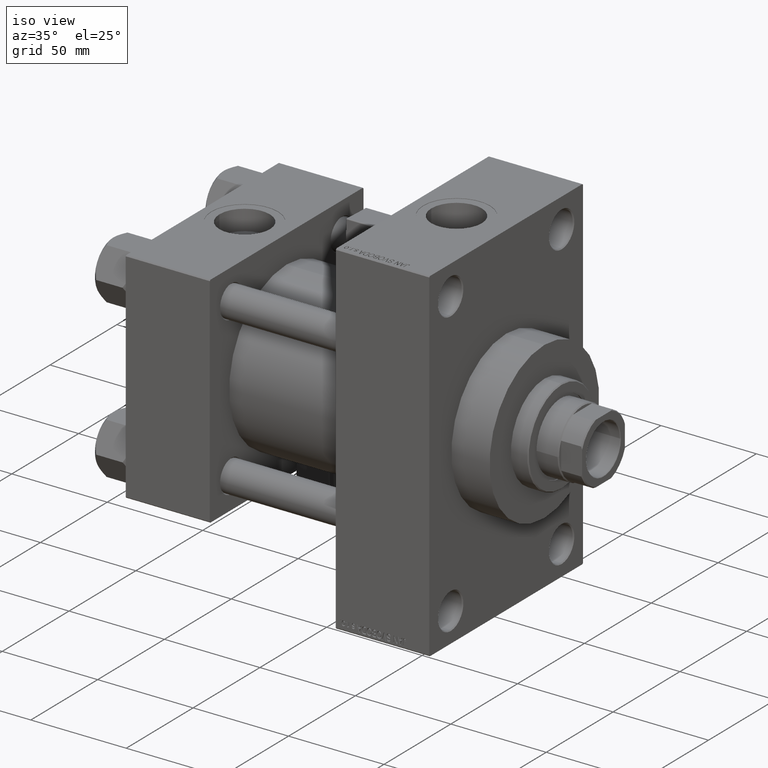
[diagram: clean part render]
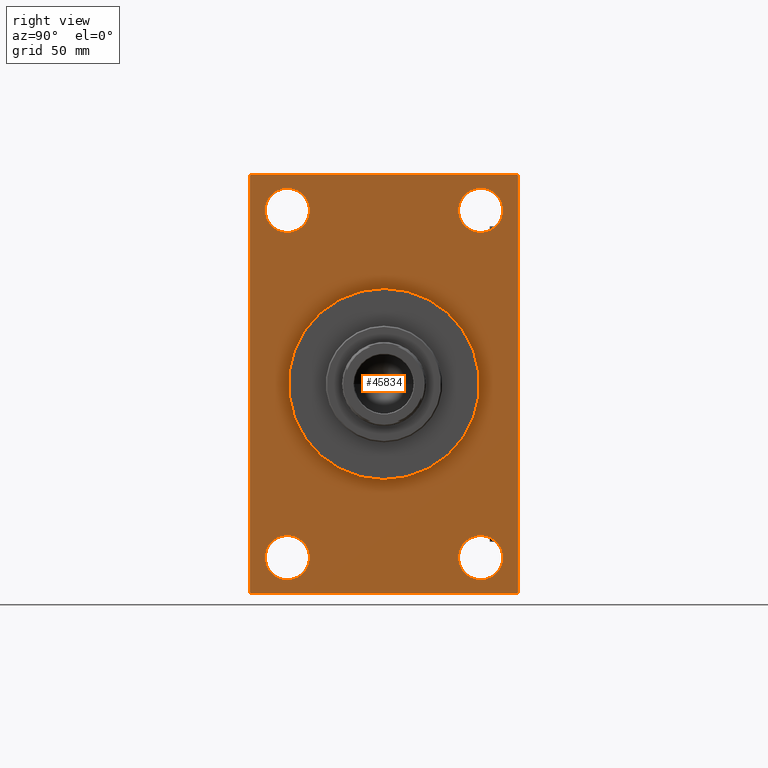
[diagram: tour spotlight — one face highlighted and labeled with its STEP entity id]
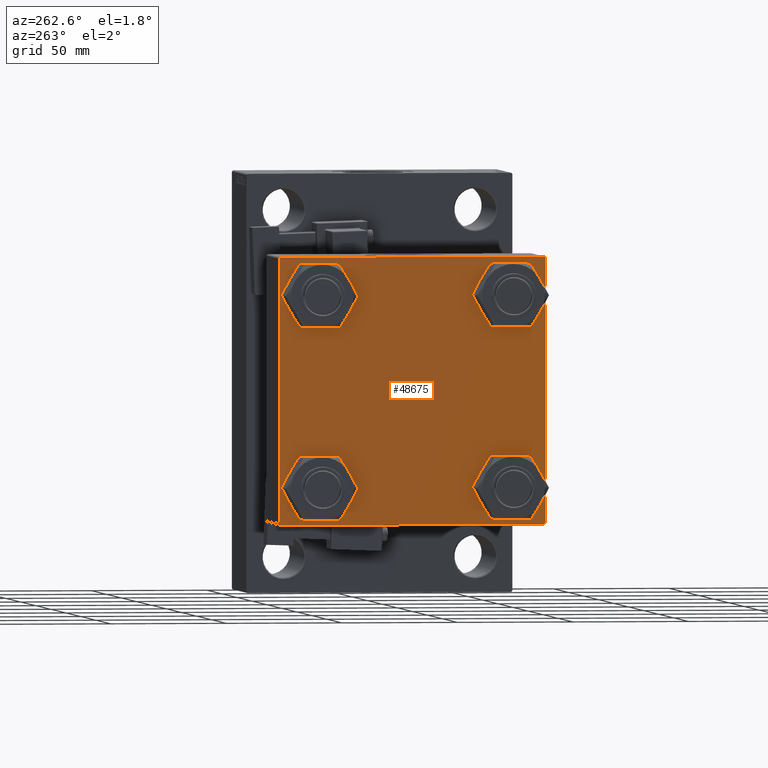
[diagram: tour spotlight — one face highlighted and labeled with its STEP entity id]
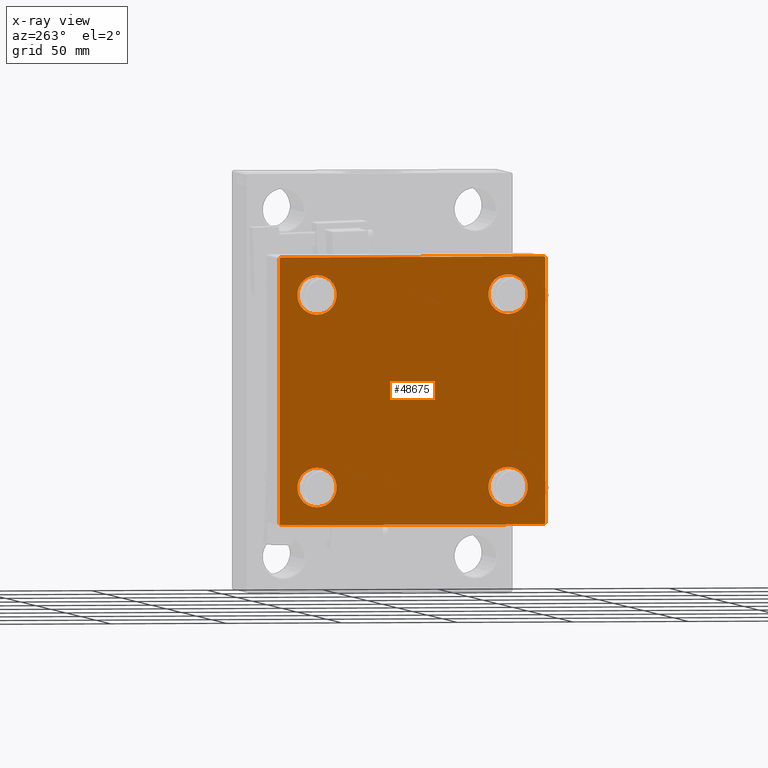
[diagram: x-ray of the same camera — body ghosted, this tour face saturated]
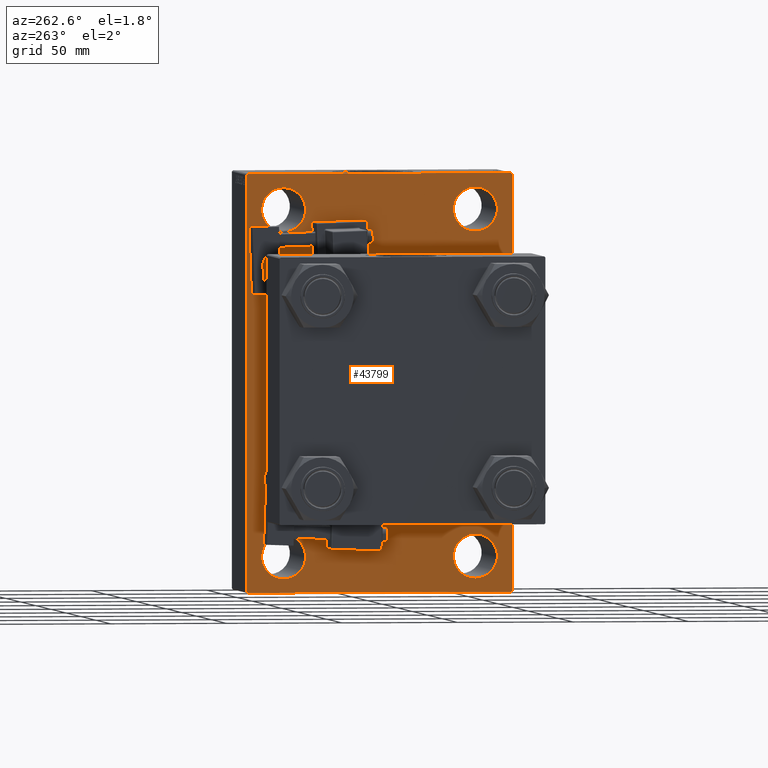
[diagram: tour spotlight — one face highlighted and labeled with its STEP entity id]
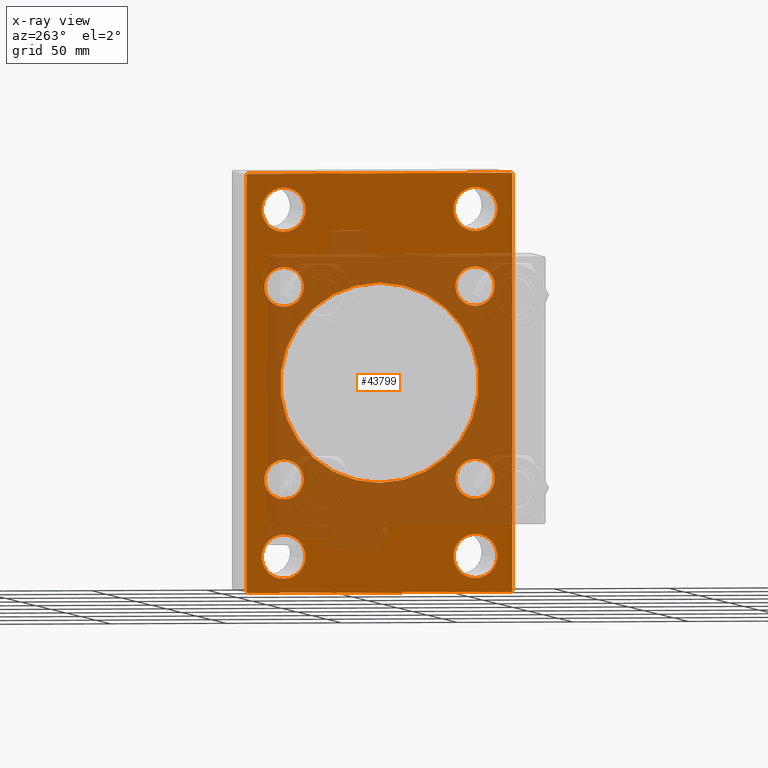
[diagram: x-ray of the same camera — body ghosted, this tour face saturated]
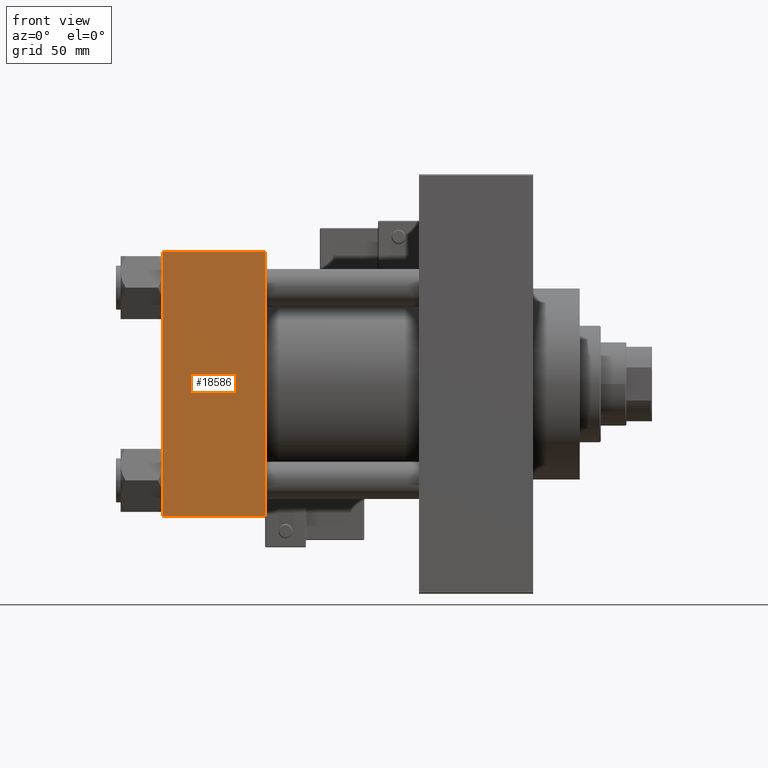
[diagram: tour spotlight — one face highlighted and labeled with its STEP entity id]
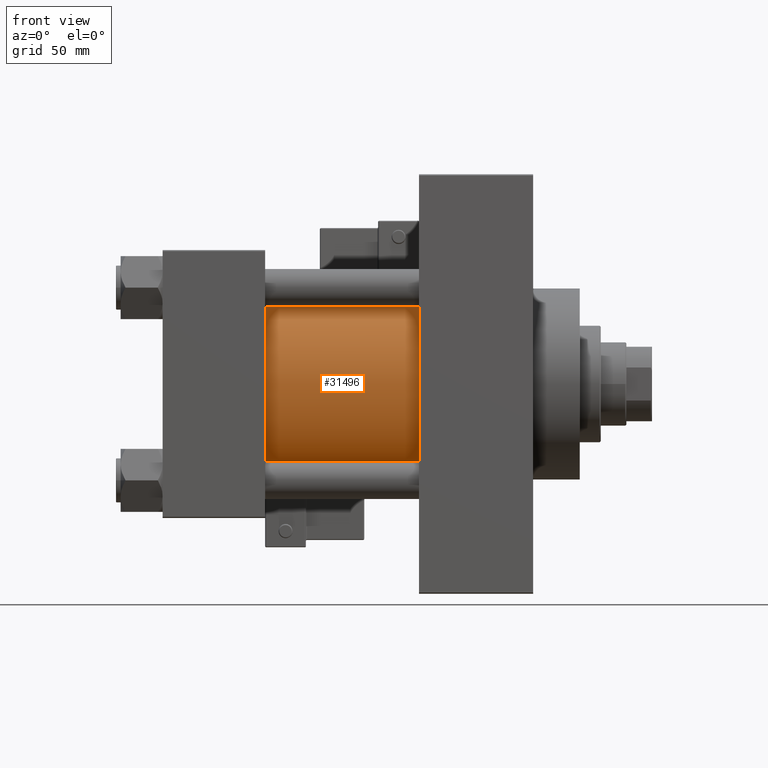
[diagram: tour spotlight — one face highlighted and labeled with its STEP entity id]
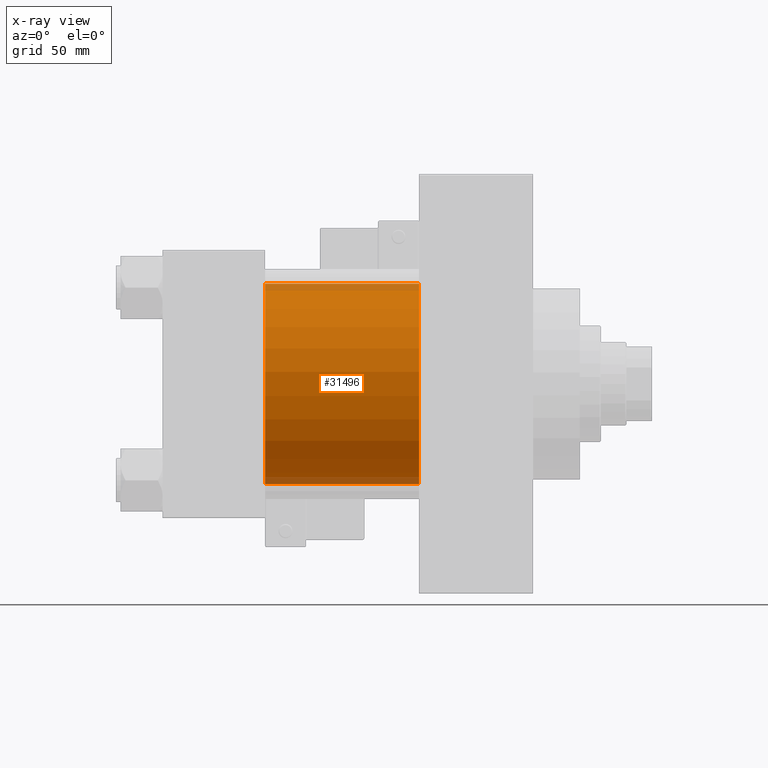
[diagram: x-ray of the same camera — body ghosted, this tour face saturated]
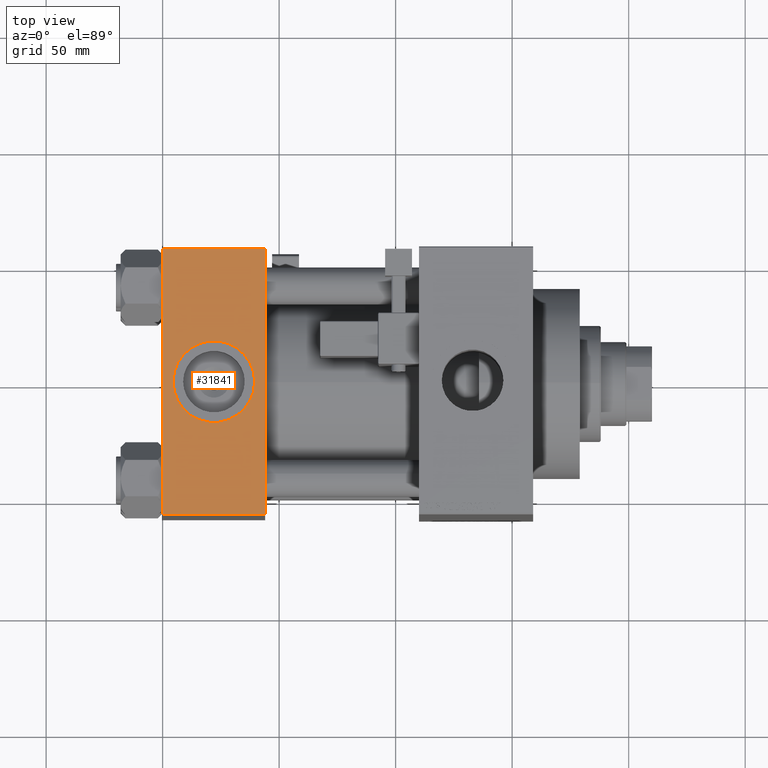
[diagram: tour spotlight — one face highlighted and labeled with its STEP entity id]
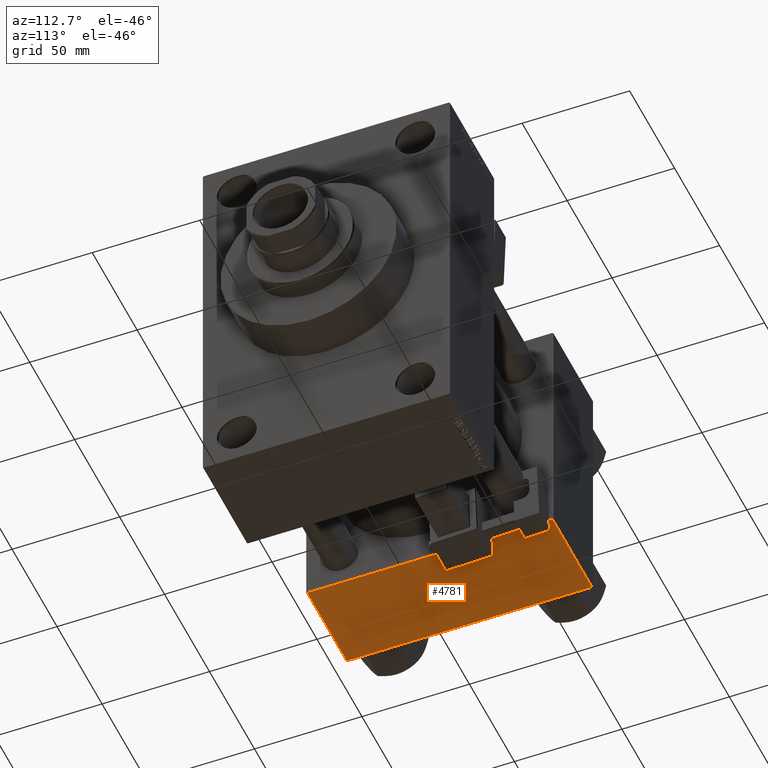
[diagram: tour spotlight — one face highlighted and labeled with its STEP entity id]
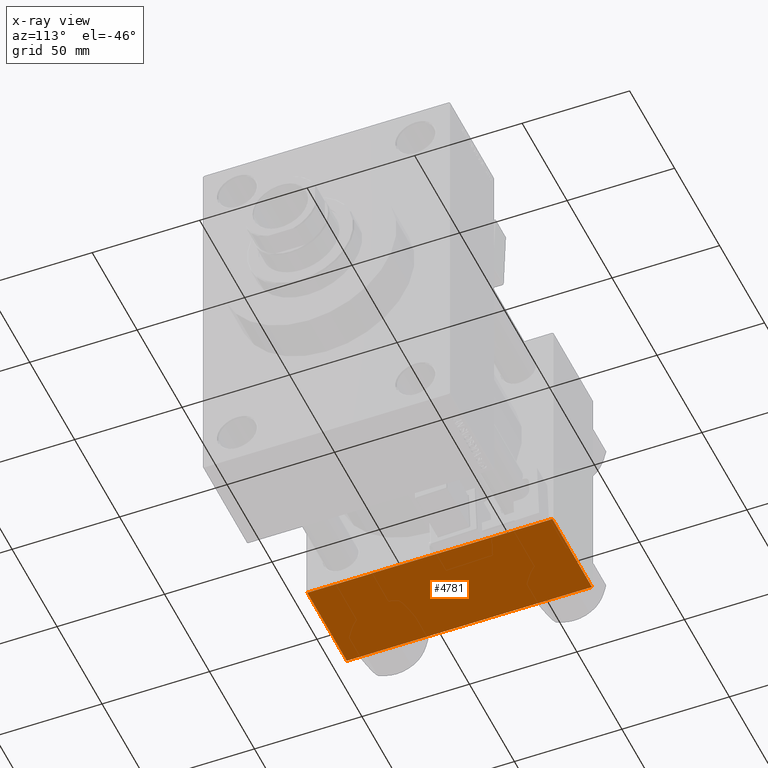
[diagram: x-ray of the same camera — body ghosted, this tour face saturated]
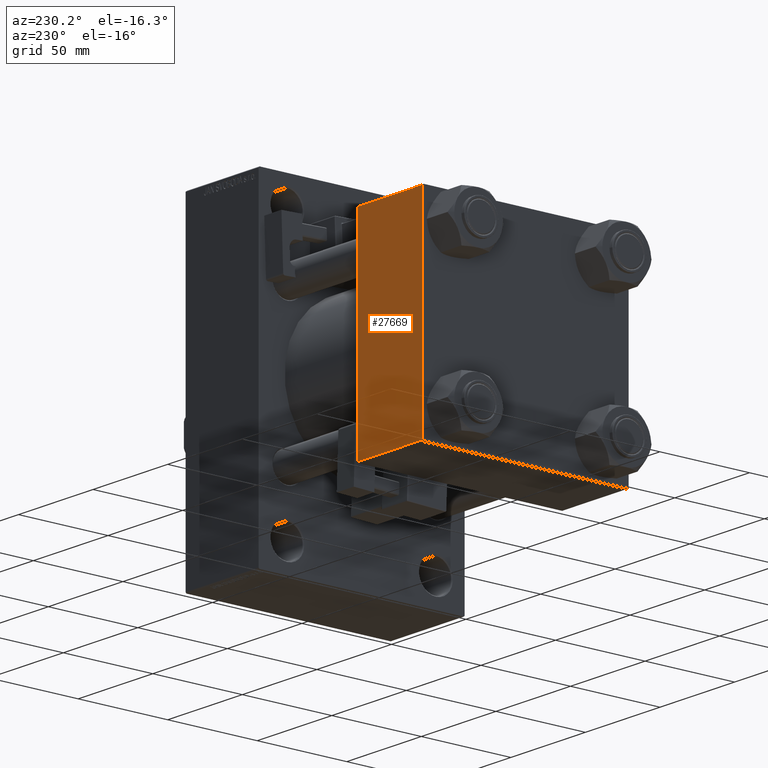
[diagram: tour spotlight — one face highlighted and labeled with its STEP entity id]
A machine part: a face-by-face anatomy tour. The part has 1305 B-rep faces; the first image is the clean iso view, then the 8 largest visible faces are spotlighted one at a time (largest first), each with its STEP entity span.

Face 1 — right view, entity #45834. In plain terms, the highlighted planar face has unit normal (-1, 0, 0).
Definition (entity closure, byte-faithful):
#60 = VERTEX_POINT ( 'NONE', #26088 ) ;
#236 = AXIS2_PLACEMENT_3D ( 'NONE', #9903, #13440, #16483 ) ;
#352 = VECTOR ( 'NONE', #33838, 999.9999999999998863 ) ;
#566 = ORIENTED_EDGE ( 'NONE', *, *, #5485, .F. ) ;
#898 = DIRECTION ( 'NONE',  ( 0.000000000000000000, 0.000000000000000000, 1.000000000000000000 ) ) ;
#1143 = VECTOR ( 'NONE', #24784, 999.9999999999998863 ) ;
#1440 = CARTESIAN_POINT ( 'NONE',  ( 159.0000000000000000, 57.49999999999997868, -89.49999999999990052 ) ) ;
#1905 = CARTESIAN_POINT ( 'NONE',  ( 159.0000000000000000, -41.49999999999999289, -83.99999999999998579 ) ) ;
#1997 = DIRECTION ( 'NONE',  ( -1.000000000000000000, 0.000000000000000000, -0.000000000000000000 ) ) ;
#2068 = FACE_BOUND ( 'NONE', #8652, .T. ) ;
#2795 = CARTESIAN_POINT ( 'NONE',  ( 159.0000000000000000, 56.99999999999992895, -90.00000000000000000 ) ) ;
#3307 = AXIS2_PLACEMENT_3D ( 'NONE', #25249, #40644, #17691 ) ;
#3892 = CARTESIAN_POINT ( 'NONE',  ( 159.0000000000000000, -41.49999999999999289, -74.49999999999998579 ) ) ;
#4296 = CARTESIAN_POINT ( 'NONE',  ( 159.0000000000000000, 57.49999999999997868, -90.00000000000000000 ) ) ;
#4509 = CARTESIAN_POINT ( 'NONE',  ( 159.0000000000000000, 41.50000000000000711, -64.99999999999998579 ) ) ;
#5027 = EDGE_LOOP ( 'NONE', ( #20074, #13294, #11797, #35851, #566, #5313, #5048, #11564 ) ) ;
#5044 = DIRECTION ( 'NONE',  ( 0.000000000000000000, 0.000000000000000000, 1.000000000000000000 ) ) ;
#5048 = ORIENTED_EDGE ( 'NONE', *, *, #44496, .T. ) ;
#5086 = LINE ( 'NONE', #47193, #30047 ) ;
#5313 = ORIENTED_EDGE ( 'NONE', *, *, #24530, .T. ) ;
#5356 = ORIENTED_EDGE ( 'NONE', *, *, #12952, .F. ) ;
#5485 = EDGE_CURVE ( 'NONE', #22045, #7161, #5086, .T. ) ;
#5864 = CARTESIAN_POINT ( 'NONE',  ( 159.0000000000000000, 56.99999999999994316, 89.99999999999998579 ) ) ;
#5867 = FACE_BOUND ( 'NONE', #24148, .T. ) ;
#6032 = EDGE_CURVE ( 'NONE', #48201, #31569, #32363, .T. ) ;
#6248 = DIRECTION ( 'NONE',  ( 0.000000000000000000, 0.000000000000000000, -1.000000000000000000 ) ) ;
#7161 = VERTEX_POINT ( 'NONE', #1440 ) ;
#7405 = EDGE_CURVE ( 'NONE', #39873, #31569, #8337, .T. ) ;
#8123 = VERTEX_POINT ( 'NONE', #12690 ) ;
#8303 = CIRCLE ( 'NONE', #236, 9.500000000000008882 ) ;
#8337 = LINE ( 'NONE', #4296, #8445 ) ;
#8445 = VECTOR ( 'NONE', #35803, 1000.000000000000000 ) ;
#8652 = EDGE_LOOP ( 'NONE', ( #37401, #23479 ) ) ;
#9682 = VERTEX_POINT ( 'NONE', #27178 ) ;
#9903 = CARTESIAN_POINT ( 'NONE',  ( 159.0000000000000000, -41.49999999999999289, 74.50000000000001421 ) ) ;
#10680 = EDGE_CURVE ( 'NONE', #11099, #9682, #43164, .T. ) ;
#10975 = EDGE_CURVE ( 'NONE', #18957, #46754, #43198, .T. ) ;
#11099 = VERTEX_POINT ( 'NONE', #29075 ) ;
#11114 = DIRECTION ( 'NONE',  ( 0.000000000000000000, -0.7071067811865474617, 0.7071067811865474617 ) ) ;
#11399 = AXIS2_PLACEMENT_3D ( 'NONE', #13896, #29248, #44653 ) ;
#11564 = ORIENTED_EDGE ( 'NONE', *, *, #10680, .T. ) ;
#11766 = EDGE_CURVE ( 'NONE', #22388, #14413, #22292, .T. ) ;
#11797 = ORIENTED_EDGE ( 'NONE', *, *, #7405, .F. ) ;
#12404 = DIRECTION ( 'NONE',  ( 0.000000000000000000, 3.854941057726238467E-17, -1.000000000000000000 ) ) ;
#12690 = CARTESIAN_POINT ( 'NONE',  ( 159.0000000000000000, 41.50000000000000711, 84.00000000000001421 ) ) ;
#12952 = EDGE_CURVE ( 'NONE', #42985, #34479, #15890, .T. ) ;
#13237 = EDGE_LOOP ( 'NONE', ( #49743, #26715 ) ) ;
#13294 = ORIENTED_EDGE ( 'NONE', *, *, #6032, .T. ) ;
#13440 = DIRECTION ( 'NONE',  ( -1.000000000000000000, 0.000000000000000000, -0.000000000000000000 ) ) ;
#13713 = CIRCLE ( 'NONE', #31431, 9.500000000000008882 ) ;
#13896 = CARTESIAN_POINT ( 'NONE',  ( 159.0000000000000000, 0.000000000000000000, 0.000000000000000000 ) ) ;
#14413 = VERTEX_POINT ( 'NONE', #1905 ) ;
#14646 = EDGE_CURVE ( 'NONE', #14413, #22388, #32862, .T. ) ;
#14693 = CARTESIAN_POINT ( 'NONE',  ( 159.0000000000000000, -41.49999999999999289, -64.99999999999997158 ) ) ;
#15665 = CARTESIAN_POINT ( 'NONE',  ( 159.0000000000000000, -57.50000000000002132, 89.99999999999997158 ) ) ;
#15890 = CIRCLE ( 'NONE', #44061, 41.00000000000000000 ) ;
#16483 = DIRECTION ( 'NONE',  ( 0.000000000000000000, 0.000000000000000000, 1.000000000000000000 ) ) ;
#16533 = FACE_BOUND ( 'NONE', #13237, .T. ) ;
#16753 = CARTESIAN_POINT ( 'NONE',  ( 159.0000000000000000, -56.99999999999996447, -90.00000000000001421 ) ) ;
#16867 = CARTESIAN_POINT ( 'NONE',  ( 159.0000000000000000, -56.99999999999996447, -90.00000000000001421 ) ) ;
#16947 = CARTESIAN_POINT ( 'NONE',  ( 159.0000000000000000, 5.021051876504148963E-15, -41.00000000000000000 ) ) ;
#16955 = CIRCLE ( 'NONE', #45135, 9.500000000000008882 ) ;
#17223 = EDGE_CURVE ( 'NONE', #22505, #60, #8303, .T. ) ;
#17691 = DIRECTION ( 'NONE',  ( -0.000000000000000000, 0.000000000000000000, 1.000000000000000000 ) ) ;
#18187 = DIRECTION ( 'NONE',  ( -1.000000000000000000, 0.000000000000000000, -0.000000000000000000 ) ) ;
#18324 = CARTESIAN_POINT ( 'NONE',  ( 159.0000000000000000, 0.000000000000000000, 0.000000000000000000 ) ) ;
#18422 = DIRECTION ( 'NONE',  ( 0.000000000000000000, 0.000000000000000000, 1.000000000000000000 ) ) ;
#18529 = ORIENTED_EDGE ( 'NONE', *, *, #10975, .T. ) ;
#18957 = VERTEX_POINT ( 'NONE', #4509 ) ;
#20074 = ORIENTED_EDGE ( 'NONE', *, *, #46086, .T. ) ;
#20657 = CARTESIAN_POINT ( 'NONE',  ( 159.0000000000000000, 57.49999999999997158, 89.99999999999998579 ) ) ;
#21748 = CARTESIAN_POINT ( 'NONE',  ( 159.0000000000000000, 57.49999999999997868, -89.49999999999995737 ) ) ;
#22045 = VERTEX_POINT ( 'NONE', #27916 ) ;
#22207 = DIRECTION ( 'NONE',  ( -1.000000000000000000, 0.000000000000000000, -0.000000000000000000 ) ) ;
#22261 = ORIENTED_EDGE ( 'NONE', *, *, #45470, .T. ) ;
#22292 = CIRCLE ( 'NONE', #29511, 9.500000000000008882 ) ;
#22388 = VERTEX_POINT ( 'NONE', #14693 ) ;
#22402 = EDGE_CURVE ( 'NONE', #39873, #7161, #49219, .T. ) ;
#22505 = VERTEX_POINT ( 'NONE', #26744 ) ;
#23204 = DIRECTION ( 'NONE',  ( 0.000000000000000000, 0.000000000000000000, -1.000000000000000000 ) ) ;
#23479 = ORIENTED_EDGE ( 'NONE', *, *, #43095, .T. ) ;
#23784 = DIRECTION ( 'NONE',  ( 0.000000000000000000, 0.000000000000000000, 1.000000000000000000 ) ) ;
#23924 = EDGE_LOOP ( 'NONE', ( #43213, #5356 ) ) ;
#24148 = EDGE_LOOP ( 'NONE', ( #38736, #30061 ) ) ;
#24276 = CIRCLE ( 'NONE', #11399, 41.00000000000000000 ) ;
#24422 = LINE ( 'NONE', #20657, #30603 ) ;
#24530 = EDGE_CURVE ( 'NONE', #22045, #43864, #29331, .T. ) ;
#24784 = DIRECTION ( 'NONE',  ( 0.000000000000000000, 0.7071067811865574537, -0.7071067811865376918 ) ) ;
#25249 = CARTESIAN_POINT ( 'NONE',  ( 159.0000000000000000, 0.000000000000000000, 0.000000000000000000 ) ) ;
#25972 = CARTESIAN_POINT ( 'NONE',  ( 159.0000000000000000, 41.50000000000000711, 74.50000000000001421 ) ) ;
#26088 = CARTESIAN_POINT ( 'NONE',  ( 159.0000000000000000, -41.49999999999999289, 84.00000000000001421 ) ) ;
#26715 = ORIENTED_EDGE ( 'NONE', *, *, #11766, .T. ) ;
#26716 = DIRECTION ( 'NONE',  ( 0.000000000000000000, 0.000000000000000000, 1.000000000000000000 ) ) ;
#26744 = CARTESIAN_POINT ( 'NONE',  ( 159.0000000000000000, -41.49999999999999289, 65.00000000000000000 ) ) ;
#26902 = DIRECTION ( 'NONE',  ( 0.000000000000000000, 0.000000000000000000, 1.000000000000000000 ) ) ;
#27178 = CARTESIAN_POINT ( 'NONE',  ( 159.0000000000000000, -57.50000000000002132, 89.49999999999994316 ) ) ;
#27916 = CARTESIAN_POINT ( 'NONE',  ( 159.0000000000000000, 57.49999999999997158, 89.49999999999995737 ) ) ;
#28090 = DIRECTION ( 'NONE',  ( -1.000000000000000000, 0.000000000000000000, -0.000000000000000000 ) ) ;
#28255 = CARTESIAN_POINT ( 'NONE',  ( 159.0000000000000000, -57.50000000000002132, 89.49999999999994316 ) ) ;
#28540 = CARTESIAN_POINT ( 'NONE',  ( 159.0000000000000000, 41.50000000000000711, 65.00000000000000000 ) ) ;
#29025 = FACE_OUTER_BOUND ( 'NONE', #5027, .T. ) ;
#29075 = CARTESIAN_POINT ( 'NONE',  ( 159.0000000000000000, -56.99999999999998579, 89.99999999999997158 ) ) ;
#29248 = DIRECTION ( 'NONE',  ( 1.000000000000000000, 0.000000000000000000, 0.000000000000000000 ) ) ;
#29331 = LINE ( 'NONE', #49441, #36623 ) ;
#29511 = AXIS2_PLACEMENT_3D ( 'NONE', #34738, #28090, #898 ) ;
#29662 = DIRECTION ( 'NONE',  ( 1.000000000000000000, 0.000000000000000000, 0.000000000000000000 ) ) ;
#30047 = VECTOR ( 'NONE', #12404, 1000.000000000000000 ) ;
#30061 = ORIENTED_EDGE ( 'NONE', *, *, #32479, .T. ) ;
#30138 = DIRECTION ( 'NONE',  ( -1.000000000000000000, 0.000000000000000000, -0.000000000000000000 ) ) ;
#30297 = VECTOR ( 'NONE', #46957, 1000.000000000000000 ) ;
#30603 = VECTOR ( 'NONE', #39824, 1000.000000000000000 ) ;
#31431 = AXIS2_PLACEMENT_3D ( 'NONE', #40319, #1997, #5044 ) ;
#31439 = DIRECTION ( 'NONE',  ( -1.000000000000000000, 0.000000000000000000, -0.000000000000000000 ) ) ;
#31569 = VERTEX_POINT ( 'NONE', #16867 ) ;
#32363 = LINE ( 'NONE', #16753, #1143 ) ;
#32479 = EDGE_CURVE ( 'NONE', #8123, #38129, #47273, .T. ) ;
#32823 = FACE_BOUND ( 'NONE', #23924, .T. ) ;
#32862 = CIRCLE ( 'NONE', #45756, 9.500000000000008882 ) ;
#33838 = DIRECTION ( 'NONE',  ( -0.000000000000000000, 0.7071067811865574537, 0.7071067811865376918 ) ) ;
#34479 = VERTEX_POINT ( 'NONE', #36728 ) ;
#34738 = CARTESIAN_POINT ( 'NONE',  ( 159.0000000000000000, -41.49999999999999289, -74.49999999999998579 ) ) ;
#35204 = AXIS2_PLACEMENT_3D ( 'NONE', #25972, #22207, #18422 ) ;
#35803 = DIRECTION ( 'NONE',  ( 0.000000000000000000, -1.000000000000000000, -1.206764157201257045E-16 ) ) ;
#35851 = ORIENTED_EDGE ( 'NONE', *, *, #22402, .T. ) ;
#36623 = VECTOR ( 'NONE', #11114, 1000.000000000000114 ) ;
#36728 = CARTESIAN_POINT ( 'NONE',  ( 159.0000000000000000, 0.000000000000000000, 41.00000000000000000 ) ) ;
#37401 = ORIENTED_EDGE ( 'NONE', *, *, #17223, .T. ) ;
#37560 = AXIS2_PLACEMENT_3D ( 'NONE', #48832, #30138, #49822 ) ;
#38129 = VERTEX_POINT ( 'NONE', #28540 ) ;
#38736 = ORIENTED_EDGE ( 'NONE', *, *, #45252, .T. ) ;
#39824 = DIRECTION ( 'NONE',  ( 0.000000000000000000, -1.000000000000000000, -1.206764157201257291E-16 ) ) ;
#39873 = VERTEX_POINT ( 'NONE', #2795 ) ;
#40319 = CARTESIAN_POINT ( 'NONE',  ( 159.0000000000000000, 41.50000000000000711, 74.50000000000001421 ) ) ;
#40644 = DIRECTION ( 'NONE',  ( -1.000000000000000000, 0.000000000000000000, -0.000000000000000000 ) ) ;
#41131 = CARTESIAN_POINT ( 'NONE',  ( 159.0000000000000000, -41.49999999999999289, 74.50000000000001421 ) ) ;
#41218 = CARTESIAN_POINT ( 'NONE',  ( 159.0000000000000000, 41.50000000000000711, -84.00000000000000000 ) ) ;
#41272 = EDGE_LOOP ( 'NONE', ( #22261, #18529 ) ) ;
#41922 = VECTOR ( 'NONE', #23204, 1000.000000000000000 ) ;
#42955 = DIRECTION ( 'NONE',  ( -1.000000000000000000, 0.000000000000000000, -0.000000000000000000 ) ) ;
#42985 = VERTEX_POINT ( 'NONE', #16947 ) ;
#43095 = EDGE_CURVE ( 'NONE', #60, #22505, #47487, .T. ) ;
#43164 = LINE ( 'NONE', #28255, #30297 ) ;
#43198 = CIRCLE ( 'NONE', #37560, 9.500000000000008882 ) ;
#43213 = ORIENTED_EDGE ( 'NONE', *, *, #47906, .F. ) ;
#43864 = VERTEX_POINT ( 'NONE', #5864 ) ;
#44061 = AXIS2_PLACEMENT_3D ( 'NONE', #18324, #29662, #6248 ) ;
#44423 = PLANE ( 'NONE',  #3307 ) ;
#44496 = EDGE_CURVE ( 'NONE', #43864, #11099, #24422, .T. ) ;
#44653 = DIRECTION ( 'NONE',  ( 0.000000000000000000, 0.000000000000000000, -1.000000000000000000 ) ) ;
#45066 = AXIS2_PLACEMENT_3D ( 'NONE', #41131, #18187, #26716 ) ;
#45135 = AXIS2_PLACEMENT_3D ( 'NONE', #46089, #31439, #26902 ) ;
#45252 = EDGE_CURVE ( 'NONE', #38129, #8123, #13713, .T. ) ;
#45470 = EDGE_CURVE ( 'NONE', #46754, #18957, #16955, .T. ) ;
#45756 = AXIS2_PLACEMENT_3D ( 'NONE', #3892, #42955, #23784 ) ;
#45834 = ADVANCED_FACE ( 'NONE', ( #2068, #16533, #47289, #5867, #32823, #29025 ), #44423, .F. ) ;
#46086 = EDGE_CURVE ( 'NONE', #9682, #48201, #47413, .T. ) ;
#46089 = CARTESIAN_POINT ( 'NONE',  ( 159.0000000000000000, 41.50000000000000711, -74.50000000000000000 ) ) ;
#46754 = VERTEX_POINT ( 'NONE', #41218 ) ;
#46957 = DIRECTION ( 'NONE',  ( -0.000000000000000000, -0.7071067811865524577, -0.7071067811865426878 ) ) ;
#47193 = CARTESIAN_POINT ( 'NONE',  ( 159.0000000000000000, 57.49999999999997158, 89.99999999999998579 ) ) ;
#47273 = CIRCLE ( 'NONE', #35204, 9.500000000000008882 ) ;
#47289 = FACE_BOUND ( 'NONE', #41272, .T. ) ;
#47413 = LINE ( 'NONE', #15665, #41922 ) ;
#47487 = CIRCLE ( 'NONE', #45066, 9.500000000000008882 ) ;
#47628 = CARTESIAN_POINT ( 'NONE',  ( 159.0000000000000000, -57.50000000000002132, -89.49999999999991473 ) ) ;
#47906 = EDGE_CURVE ( 'NONE', #34479, #42985, #24276, .T. ) ;
#48201 = VERTEX_POINT ( 'NONE', #47628 ) ;
#48832 = CARTESIAN_POINT ( 'NONE',  ( 159.0000000000000000, 41.50000000000000711, -74.50000000000000000 ) ) ;
#49219 = LINE ( 'NONE', #21748, #352 ) ;
#49441 = CARTESIAN_POINT ( 'NONE',  ( 159.0000000000000000, 56.99999999999994316, 89.99999999999998579 ) ) ;
#49743 = ORIENTED_EDGE ( 'NONE', *, *, #14646, .T. ) ;
#49822 = DIRECTION ( 'NONE',  ( 0.000000000000000000, 0.000000000000000000, 1.000000000000000000 ) ) ;

Face 2 — auxiliary view, entity #48675. An x-ray twin of the same camera follows (body ghosted, this face saturated) — the face is partly hidden behind the body. In plain terms, the highlighted planar face has unit normal (-1, 0, 0).
Definition (entity closure, byte-faithful):
#128 = CARTESIAN_POINT ( 'NONE',  ( 0.000000000000000000, 57.49999999999999289, -57.00000000000000711 ) ) ;
#165 = DIRECTION ( 'NONE',  ( 0.000000000000000000, 0.000000000000000000, 1.000000000000000000 ) ) ;
#866 = VERTEX_POINT ( 'NONE', #128 ) ;
#1388 = AXIS2_PLACEMENT_3D ( 'NONE', #31661, #4691, #165 ) ;
#1453 = AXIS2_PLACEMENT_3D ( 'NONE', #41606, #33541, #48934 ) ;
#1538 = LINE ( 'NONE', #13383, #2755 ) ;
#1576 = CARTESIAN_POINT ( 'NONE',  ( 0.000000000000000000, -41.34999999999998721, -41.35000000000000853 ) ) ;
#1767 = DIRECTION ( 'NONE',  ( 0.000000000000000000, 0.000000000000000000, 1.000000000000000000 ) ) ;
#1837 = EDGE_CURVE ( 'NONE', #40566, #28743, #25271, .T. ) ;
#2200 = VECTOR ( 'NONE', #30104, 1000.000000000000114 ) ;
#2710 = ORIENTED_EDGE ( 'NONE', *, *, #45012, .T. ) ;
#2755 = VECTOR ( 'NONE', #40103, 1000.000000000000000 ) ;
#2808 = CARTESIAN_POINT ( 'NONE',  ( 0.000000000000000000, 57.49999999999999289, 57.00000000000003553 ) ) ;
#2882 = VERTEX_POINT ( 'NONE', #29031 ) ;
#2899 = LINE ( 'NONE', #33654, #2200 ) ;
#2981 = DIRECTION ( 'NONE',  ( 0.000000000000000000, 0.000000000000000000, 1.000000000000000000 ) ) ;
#3164 = FACE_BOUND ( 'NONE', #49813, .T. ) ;
#3267 = VECTOR ( 'NONE', #5360, 1000.000000000000114 ) ;
#3656 = VERTEX_POINT ( 'NONE', #27117 ) ;
#3909 = FACE_OUTER_BOUND ( 'NONE', #17950, .T. ) ;
#4553 = CARTESIAN_POINT ( 'NONE',  ( 0.000000000000000000, 57.24999999999922551, 57.25000000000081712 ) ) ;
#4691 = DIRECTION ( 'NONE',  ( 1.000000000000000000, -0.000000000000000000, 0.000000000000000000 ) ) ;
#5360 = DIRECTION ( 'NONE',  ( 0.000000000000000000, -0.7071067811865474617, 0.7071067811865474617 ) ) ;
#5535 = VERTEX_POINT ( 'NONE', #37331 ) ;
#5566 = CARTESIAN_POINT ( 'NONE',  ( 0.000000000000000000, -41.34999999999998721, -41.35000000000000853 ) ) ;
#6115 = DIRECTION ( 'NONE',  ( 0.000000000000000000, 0.000000000000000000, 1.000000000000000000 ) ) ;
#6775 = CARTESIAN_POINT ( 'NONE',  ( 0.000000000000000000, 41.34999999999999432, 32.85000000000000853 ) ) ;
#7019 = ORIENTED_EDGE ( 'NONE', *, *, #1837, .T. ) ;
#7359 = ORIENTED_EDGE ( 'NONE', *, *, #11344, .T. ) ;
#7709 = PLANE ( 'NONE',  #30745 ) ;
#7867 = CARTESIAN_POINT ( 'NONE',  ( 0.000000000000000000, -41.34999999999998721, 41.35000000000000853 ) ) ;
#8377 = VECTOR ( 'NONE', #10095, 1000.000000000000000 ) ;
#9264 = EDGE_CURVE ( 'NONE', #3656, #41129, #36687, .T. ) ;
#9636 = DIRECTION ( 'NONE',  ( 1.000000000000000000, -0.000000000000000000, 0.000000000000000000 ) ) ;
#9880 = CARTESIAN_POINT ( 'NONE',  ( 0.000000000000000000, -57.25000000000000711, -57.25000000000000711 ) ) ;
#10095 = DIRECTION ( 'NONE',  ( 0.000000000000000000, 0.000000000000000000, -1.000000000000000000 ) ) ;
#10308 = CIRCLE ( 'NONE', #1453, 8.499999999999992895 ) ;
#10310 = EDGE_CURVE ( 'NONE', #43109, #34645, #16978, .T. ) ;
#10917 = AXIS2_PLACEMENT_3D ( 'NONE', #14748, #18020, #30096 ) ;
#10982 = DIRECTION ( 'NONE',  ( -1.000000000000000000, 0.000000000000000000, -0.000000000000000000 ) ) ;
#11042 = DIRECTION ( 'NONE',  ( 1.000000000000000000, -0.000000000000000000, 0.000000000000000000 ) ) ;
#11104 = VERTEX_POINT ( 'NONE', #48017 ) ;
#11207 = VERTEX_POINT ( 'NONE', #37908 ) ;
#11344 = EDGE_CURVE ( 'NONE', #43109, #2882, #13915, .T. ) ;
#13297 = EDGE_CURVE ( 'NONE', #20591, #11207, #23105, .T. ) ;
#13374 = VECTOR ( 'NONE', #28294, 1000.000000000000000 ) ;
#13383 = CARTESIAN_POINT ( 'NONE',  ( 0.000000000000000000, 57.49999999999999289, -57.49999999999999289 ) ) ;
#13915 = LINE ( 'NONE', #25493, #22253 ) ;
#14049 = EDGE_CURVE ( 'NONE', #30512, #16835, #28783, .T. ) ;
#14153 = CARTESIAN_POINT ( 'NONE',  ( 0.000000000000000000, 57.49999999999999289, 57.50000000000000711 ) ) ;
#14176 = ORIENTED_EDGE ( 'NONE', *, *, #15185, .T. ) ;
#14748 = CARTESIAN_POINT ( 'NONE',  ( 0.000000000000000000, 41.34999999999999432, -41.35000000000000142 ) ) ;
#15185 = EDGE_CURVE ( 'NONE', #16835, #30512, #10308, .T. ) ;
#15466 = EDGE_LOOP ( 'NONE', ( #37529, #7019 ) ) ;
#15664 = DIRECTION ( 'NONE',  ( 1.000000000000000000, -0.000000000000000000, 0.000000000000000000 ) ) ;
#16788 = EDGE_CURVE ( 'NONE', #28743, #40566, #49366, .T. ) ;
#16835 = VERTEX_POINT ( 'NONE', #25940 ) ;
#16978 = LINE ( 'NONE', #43948, #13374 ) ;
#17219 = AXIS2_PLACEMENT_3D ( 'NONE', #1576, #9636, #6115 ) ;
#17950 = EDGE_LOOP ( 'NONE', ( #19841, #39094, #32912, #2710, #49294, #7359, #34865, #31557 ) ) ;
#18020 = DIRECTION ( 'NONE',  ( 1.000000000000000000, -0.000000000000000000, 0.000000000000000000 ) ) ;
#18671 = CARTESIAN_POINT ( 'NONE',  ( 0.000000000000000000, -57.50000000000000711, 57.00000000000000711 ) ) ;
#18790 = DIRECTION ( 'NONE',  ( -0.000000000000000000, 0.000000000000000000, 1.000000000000000000 ) ) ;
#19181 = DIRECTION ( 'NONE',  ( 0.000000000000000000, 0.000000000000000000, 1.000000000000000000 ) ) ;
#19841 = ORIENTED_EDGE ( 'NONE', *, *, #22750, .T. ) ;
#19884 = CARTESIAN_POINT ( 'NONE',  ( 0.000000000000000000, 57.00000000000000711, 57.50000000000000711 ) ) ;
#20501 = CARTESIAN_POINT ( 'NONE',  ( 0.000000000000000000, -41.34999999999998721, -32.85000000000001563 ) ) ;
#20591 = VERTEX_POINT ( 'NONE', #6775 ) ;
#21673 = CIRCLE ( 'NONE', #49861, 8.499999999999992895 ) ;
#21689 = CARTESIAN_POINT ( 'NONE',  ( 0.000000000000000000, -41.34999999999998721, 32.85000000000001563 ) ) ;
#22253 = VECTOR ( 'NONE', #45662, 1000.000000000000114 ) ;
#22390 = CARTESIAN_POINT ( 'NONE',  ( 0.000000000000000000, 41.34999999999999432, 41.35000000000000142 ) ) ;
#22563 = EDGE_CURVE ( 'NONE', #11104, #5535, #1538, .T. ) ;
#22750 = EDGE_CURVE ( 'NONE', #43087, #866, #36816, .T. ) ;
#23105 = CIRCLE ( 'NONE', #1388, 8.499999999999992895 ) ;
#23222 = DIRECTION ( 'NONE',  ( 0.000000000000000000, 0.000000000000000000, 1.000000000000000000 ) ) ;
#24370 = AXIS2_PLACEMENT_3D ( 'NONE', #5566, #36311, #1767 ) ;
#24497 = ORIENTED_EDGE ( 'NONE', *, *, #13297, .T. ) ;
#25271 = CIRCLE ( 'NONE', #17219, 8.499999999999992895 ) ;
#25493 = CARTESIAN_POINT ( 'NONE',  ( -0.000000000000000000, -57.25000000000081712, 57.24999999999922551 ) ) ;
#25940 = CARTESIAN_POINT ( 'NONE',  ( 0.000000000000000000, -41.34999999999998721, 49.85000000000000853 ) ) ;
#27117 = CARTESIAN_POINT ( 'NONE',  ( 0.000000000000000000, 41.34999999999999432, -32.85000000000000853 ) ) ;
#27760 = CARTESIAN_POINT ( 'NONE',  ( 0.000000000000000000, 41.34999999999999432, -49.85000000000000142 ) ) ;
#28294 = DIRECTION ( 'NONE',  ( 0.000000000000000000, 0.000000000000000000, -1.000000000000000000 ) ) ;
#28743 = VERTEX_POINT ( 'NONE', #20501 ) ;
#28783 = CIRCLE ( 'NONE', #49753, 8.499999999999992895 ) ;
#29031 = CARTESIAN_POINT ( 'NONE',  ( 0.000000000000000000, -57.00000000000003553, 57.49999999999999289 ) ) ;
#29233 = CARTESIAN_POINT ( 'NONE',  ( 0.000000000000000000, 57.49999999999999289, 57.50000000000000711 ) ) ;
#30026 = EDGE_CURVE ( 'NONE', #866, #11104, #2899, .T. ) ;
#30096 = DIRECTION ( 'NONE',  ( 0.000000000000000000, 0.000000000000000000, 1.000000000000000000 ) ) ;
#30104 = DIRECTION ( 'NONE',  ( -0.000000000000000000, -0.7071067811865376918, -0.7071067811865573427 ) ) ;
#30512 = VERTEX_POINT ( 'NONE', #21689 ) ;
#30619 = FACE_BOUND ( 'NONE', #44594, .T. ) ;
#30712 = VECTOR ( 'NONE', #41116, 1000.000000000000000 ) ;
#30745 = AXIS2_PLACEMENT_3D ( 'NONE', #37957, #10982, #18790 ) ;
#31351 = ORIENTED_EDGE ( 'NONE', *, *, #9264, .T. ) ;
#31389 = CARTESIAN_POINT ( 'NONE',  ( 0.000000000000000000, -57.50000000000000711, -57.00000000000000711 ) ) ;
#31557 = ORIENTED_EDGE ( 'NONE', *, *, #37244, .T. ) ;
#31661 = CARTESIAN_POINT ( 'NONE',  ( 0.000000000000000000, 41.34999999999999432, 41.35000000000000142 ) ) ;
#32488 = ORIENTED_EDGE ( 'NONE', *, *, #32690, .T. ) ;
#32690 = EDGE_CURVE ( 'NONE', #11207, #20591, #37633, .T. ) ;
#32912 = ORIENTED_EDGE ( 'NONE', *, *, #22563, .T. ) ;
#33541 = DIRECTION ( 'NONE',  ( 1.000000000000000000, -0.000000000000000000, 0.000000000000000000 ) ) ;
#33547 = LINE ( 'NONE', #14153, #30712 ) ;
#33654 = CARTESIAN_POINT ( 'NONE',  ( 0.000000000000000000, 57.25000000000081712, -57.24999999999922551 ) ) ;
#33763 = VECTOR ( 'NONE', #35555, 1000.000000000000114 ) ;
#34176 = FACE_BOUND ( 'NONE', #15466, .T. ) ;
#34645 = VERTEX_POINT ( 'NONE', #31389 ) ;
#34865 = ORIENTED_EDGE ( 'NONE', *, *, #47925, .F. ) ;
#35080 = DIRECTION ( 'NONE',  ( 1.000000000000000000, -0.000000000000000000, 0.000000000000000000 ) ) ;
#35555 = DIRECTION ( 'NONE',  ( 0.000000000000000000, 0.7071067811865573427, -0.7071067811865376918 ) ) ;
#36311 = DIRECTION ( 'NONE',  ( 1.000000000000000000, -0.000000000000000000, 0.000000000000000000 ) ) ;
#36687 = CIRCLE ( 'NONE', #10917, 8.499999999999992895 ) ;
#36697 = ORIENTED_EDGE ( 'NONE', *, *, #37143, .T. ) ;
#36816 = LINE ( 'NONE', #29233, #8377 ) ;
#36852 = LINE ( 'NONE', #9880, #3267 ) ;
#37143 = EDGE_CURVE ( 'NONE', #41129, #3656, #21673, .T. ) ;
#37244 = EDGE_CURVE ( 'NONE', #47252, #43087, #39088, .T. ) ;
#37331 = CARTESIAN_POINT ( 'NONE',  ( 0.000000000000000000, -57.00000000000000711, -57.50000000000000711 ) ) ;
#37529 = ORIENTED_EDGE ( 'NONE', *, *, #16788, .T. ) ;
#37633 = CIRCLE ( 'NONE', #45649, 8.499999999999992895 ) ;
#37908 = CARTESIAN_POINT ( 'NONE',  ( 0.000000000000000000, 41.34999999999999432, 49.85000000000000142 ) ) ;
#37957 = CARTESIAN_POINT ( 'NONE',  ( 0.000000000000000000, 0.000000000000000000, 0.000000000000000000 ) ) ;
#39088 = LINE ( 'NONE', #4553, #33763 ) ;
#39094 = ORIENTED_EDGE ( 'NONE', *, *, #30026, .T. ) ;
#40103 = DIRECTION ( 'NONE',  ( 0.000000000000000000, -1.000000000000000000, -1.206764157201257045E-16 ) ) ;
#40566 = VERTEX_POINT ( 'NONE', #45036 ) ;
#41116 = DIRECTION ( 'NONE',  ( 0.000000000000000000, -1.000000000000000000, -1.206764157201257045E-16 ) ) ;
#41129 = VERTEX_POINT ( 'NONE', #27760 ) ;
#41606 = CARTESIAN_POINT ( 'NONE',  ( 0.000000000000000000, -41.34999999999998721, 41.35000000000000853 ) ) ;
#43087 = VERTEX_POINT ( 'NONE', #2808 ) ;
#43109 = VERTEX_POINT ( 'NONE', #18671 ) ;
#43948 = CARTESIAN_POINT ( 'NONE',  ( 0.000000000000000000, -57.50000000000000711, 57.49999999999999289 ) ) ;
#44594 = EDGE_LOOP ( 'NONE', ( #31351, #36697 ) ) ;
#45012 = EDGE_CURVE ( 'NONE', #5535, #34645, #36852, .T. ) ;
#45036 = CARTESIAN_POINT ( 'NONE',  ( 0.000000000000000000, -41.34999999999998721, -49.85000000000000853 ) ) ;
#45526 = FACE_BOUND ( 'NONE', #49677, .T. ) ;
#45649 = AXIS2_PLACEMENT_3D ( 'NONE', #22390, #11042, #2981 ) ;
#45662 = DIRECTION ( 'NONE',  ( -0.000000000000000000, 0.7071067811865376918, 0.7071067811865573427 ) ) ;
#45915 = CARTESIAN_POINT ( 'NONE',  ( 0.000000000000000000, 41.34999999999999432, -41.35000000000000142 ) ) ;
#47252 = VERTEX_POINT ( 'NONE', #19884 ) ;
#47925 = EDGE_CURVE ( 'NONE', #47252, #2882, #33547, .T. ) ;
#48017 = CARTESIAN_POINT ( 'NONE',  ( 0.000000000000000000, 57.00000000000002132, -57.49999999999999289 ) ) ;
#48675 = ADVANCED_FACE ( 'NONE', ( #45526, #34176, #30619, #3164, #3909 ), #7709, .T. ) ;
#48934 = DIRECTION ( 'NONE',  ( 0.000000000000000000, 0.000000000000000000, 1.000000000000000000 ) ) ;
#49053 = ORIENTED_EDGE ( 'NONE', *, *, #14049, .T. ) ;
#49294 = ORIENTED_EDGE ( 'NONE', *, *, #10310, .F. ) ;
#49366 = CIRCLE ( 'NONE', #24370, 8.499999999999992895 ) ;
#49677 = EDGE_LOOP ( 'NONE', ( #14176, #49053 ) ) ;
#49753 = AXIS2_PLACEMENT_3D ( 'NONE', #7867, #35080, #23222 ) ;
#49813 = EDGE_LOOP ( 'NONE', ( #32488, #24497 ) ) ;
#49861 = AXIS2_PLACEMENT_3D ( 'NONE', #45915, #15664, #19181 ) ;

Face 3 — auxiliary view, entity #43799. An x-ray twin of the same camera follows (body ghosted, this face saturated) — the face is partly hidden behind the body. In plain terms, the highlighted planar face has unit normal (-1, 0, 0).
Definition (entity closure, byte-faithful):
#275 = ORIENTED_EDGE ( 'NONE', *, *, #38235, .T. ) ;
#536 = CARTESIAN_POINT ( 'NONE',  ( 110.0000000000000000, 56.99999999999994316, 89.99999999999998579 ) ) ;
#677 = ORIENTED_EDGE ( 'NONE', *, *, #18709, .T. ) ;
#711 = CARTESIAN_POINT ( 'NONE',  ( 110.0000000000000000, -41.49999999999999289, -74.49999999999998579 ) ) ;
#778 = VERTEX_POINT ( 'NONE', #48065 ) ;
#1357 = CIRCLE ( 'NONE', #17465, 9.500000000000035527 ) ;
#1363 = ORIENTED_EDGE ( 'NONE', *, *, #32285, .T. ) ;
#1438 = CARTESIAN_POINT ( 'NONE',  ( 110.0000000000000000, 57.49999999999997158, 89.99999999999998579 ) ) ;
#1531 = CARTESIAN_POINT ( 'NONE',  ( 110.0000000000000000, -2.602085213965210642E-15, 43.00000000000000000 ) ) ;
#1565 = VERTEX_POINT ( 'NONE', #42183 ) ;
#1706 = CARTESIAN_POINT ( 'NONE',  ( 110.0000000000000000, 41.50000000000000711, 74.50000000000001421 ) ) ;
#1889 = DIRECTION ( 'NONE',  ( 0.000000000000000000, 0.000000000000000000, 1.000000000000000000 ) ) ;
#2066 = DIRECTION ( 'NONE',  ( -0.000000000000000000, 0.000000000000000000, 1.000000000000000000 ) ) ;
#2328 = DIRECTION ( 'NONE',  ( 0.000000000000000000, 0.000000000000000000, -1.000000000000000000 ) ) ;
#2959 = VERTEX_POINT ( 'NONE', #23709 ) ;
#3004 = DIRECTION ( 'NONE',  ( 1.000000000000000000, -0.000000000000000000, 0.000000000000000000 ) ) ;
#3043 = VERTEX_POINT ( 'NONE', #536 ) ;
#3103 = AXIS2_PLACEMENT_3D ( 'NONE', #49462, #45921, #34323 ) ;
#3191 = CARTESIAN_POINT ( 'NONE',  ( 110.0000000000000000, 41.50000000000000711, -74.50000000000000000 ) ) ;
#3439 = CIRCLE ( 'NONE', #38064, 8.500000000000007105 ) ;
#4269 = CARTESIAN_POINT ( 'NONE',  ( 110.0000000000000000, 41.50000000000000711, 84.00000000000004263 ) ) ;
#4390 = DIRECTION ( 'NONE',  ( -0.000000000000000000, -0.7071067811865574537, -0.7071067811865376918 ) ) ;
#4719 = CARTESIAN_POINT ( 'NONE',  ( 110.0000000000000000, 56.99999999999992895, -90.00000000000000000 ) ) ;
#4752 = EDGE_LOOP ( 'NONE', ( #30546, #45817 ) ) ;
#4841 = ORIENTED_EDGE ( 'NONE', *, *, #11877, .T. ) ;
#5254 = DIRECTION ( 'NONE',  ( 0.000000000000000000, 0.000000000000000000, 1.000000000000000000 ) ) ;
#5473 = VERTEX_POINT ( 'NONE', #32050 ) ;
#5489 = VECTOR ( 'NONE', #37698, 1000.000000000000114 ) ;
#5553 = VERTEX_POINT ( 'NONE', #25213 ) ;
#5577 = CARTESIAN_POINT ( 'NONE',  ( 110.0000000000000000, 73.49999999999916156, -73.50000000000122213 ) ) ;
#5598 = VERTEX_POINT ( 'NONE', #4269 ) ;
#5747 = EDGE_CURVE ( 'NONE', #7890, #25333, #32229, .T. ) ;
#5756 = DIRECTION ( 'NONE',  ( 0.000000000000000000, 0.000000000000000000, 1.000000000000000000 ) ) ;
#5852 = VERTEX_POINT ( 'NONE', #16114 ) ;
#6109 = CIRCLE ( 'NONE', #34276, 9.500000000000035527 ) ;
#6898 = AXIS2_PLACEMENT_3D ( 'NONE', #711, #35750, #16090 ) ;
#7094 = ORIENTED_EDGE ( 'NONE', *, *, #34206, .T. ) ;
#7480 = AXIS2_PLACEMENT_3D ( 'NONE', #13940, #29544, #37123 ) ;
#7890 = VERTEX_POINT ( 'NONE', #20850 ) ;
#8237 = ORIENTED_EDGE ( 'NONE', *, *, #20904, .F. ) ;
#8797 = CARTESIAN_POINT ( 'NONE',  ( 110.0000000000000000, -41.34999999999998721, 41.35000000000000853 ) ) ;
#8802 = EDGE_CURVE ( 'NONE', #19400, #2959, #21377, .T. ) ;
#9089 = EDGE_CURVE ( 'NONE', #49387, #48361, #11760, .T. ) ;
#9092 = ORIENTED_EDGE ( 'NONE', *, *, #27101, .T. ) ;
#9421 = VERTEX_POINT ( 'NONE', #16484 ) ;
#9767 = EDGE_CURVE ( 'NONE', #5598, #5852, #6109, .T. ) ;
#10327 = DIRECTION ( 'NONE',  ( 0.000000000000000000, 0.000000000000000000, 1.000000000000000000 ) ) ;
#10333 = ORIENTED_EDGE ( 'NONE', *, *, #14505, .T. ) ;
#10390 = DIRECTION ( 'NONE',  ( -1.000000000000000000, 0.000000000000000000, -0.000000000000000000 ) ) ;
#10789 = CARTESIAN_POINT ( 'NONE',  ( 110.0000000000000000, -56.99999999999996447, -90.00000000000001421 ) ) ;
#10864 = VERTEX_POINT ( 'NONE', #19845 ) ;
#11305 = CARTESIAN_POINT ( 'NONE',  ( 110.0000000000000000, 41.34999999999999432, 41.35000000000000142 ) ) ;
#11760 = LINE ( 'NONE', #47048, #46329 ) ;
#11783 = EDGE_CURVE ( 'NONE', #33356, #37012, #34252, .T. ) ;
#11877 = EDGE_CURVE ( 'NONE', #33356, #37920, #36928, .T. ) ;
#12065 = DIRECTION ( 'NONE',  ( 0.000000000000000000, 0.000000000000000000, 1.000000000000000000 ) ) ;
#12172 = VECTOR ( 'NONE', #40373, 999.9999999999998863 ) ;
#12759 = CIRCLE ( 'NONE', #19188, 9.500000000000035527 ) ;
#12847 = EDGE_LOOP ( 'NONE', ( #30355, #7094 ) ) ;
#13330 = DIRECTION ( 'NONE',  ( 1.000000000000000000, -0.000000000000000000, 0.000000000000000000 ) ) ;
#13379 = CIRCLE ( 'NONE', #31059, 8.500000000000007105 ) ;
#13425 = FACE_BOUND ( 'NONE', #34539, .T. ) ;
#13685 = DIRECTION ( 'NONE',  ( 1.000000000000000000, 0.000000000000000000, 0.000000000000000000 ) ) ;
#13940 = CARTESIAN_POINT ( 'NONE',  ( 110.0000000000000000, -41.34999999999998721, -41.35000000000000853 ) ) ;
#13968 = VERTEX_POINT ( 'NONE', #48479 ) ;
#14505 = EDGE_CURVE ( 'NONE', #3043, #7890, #30600, .T. ) ;
#14539 = CARTESIAN_POINT ( 'NONE',  ( 110.0000000000000000, -41.49999999999999289, 74.50000000000001421 ) ) ;
#14688 = VECTOR ( 'NONE', #4390, 999.9999999999998863 ) ;
#14822 = EDGE_LOOP ( 'NONE', ( #33105, #1363 ) ) ;
#15209 = VERTEX_POINT ( 'NONE', #18407 ) ;
#15337 = CARTESIAN_POINT ( 'NONE',  ( 110.0000000000000000, -57.50000000000002132, 89.49999999999994316 ) ) ;
#15395 = CARTESIAN_POINT ( 'NONE',  ( 110.0000000000000000, 41.34999999999999432, -32.84999999999999432 ) ) ;
#15851 = VECTOR ( 'NONE', #16530, 1000.000000000000000 ) ;
#15861 = EDGE_CURVE ( 'NONE', #16650, #21794, #33592, .T. ) ;
#16090 = DIRECTION ( 'NONE',  ( 0.000000000000000000, 0.000000000000000000, 1.000000000000000000 ) ) ;
#16114 = CARTESIAN_POINT ( 'NONE',  ( 110.0000000000000000, 41.50000000000000711, 64.99999999999997158 ) ) ;
#16209 = CARTESIAN_POINT ( 'NONE',  ( 110.0000000000000000, -41.49999999999999289, 64.99999999999997158 ) ) ;
#16484 = CARTESIAN_POINT ( 'NONE',  ( 110.0000000000000000, 41.34999999999999432, 32.84999999999999432 ) ) ;
#16530 = DIRECTION ( 'NONE',  ( 0.000000000000000000, 0.000000000000000000, -1.000000000000000000 ) ) ;
#16650 = VERTEX_POINT ( 'NONE', #1531 ) ;
#16970 = EDGE_CURVE ( 'NONE', #5852, #5598, #30813, .T. ) ;
#17024 = EDGE_CURVE ( 'NONE', #9421, #28920, #3439, .T. ) ;
#17379 = EDGE_CURVE ( 'NONE', #15209, #778, #29185, .T. ) ;
#17465 = AXIS2_PLACEMENT_3D ( 'NONE', #30338, #42445, #45736 ) ;
#17558 = ORIENTED_EDGE ( 'NONE', *, *, #15861, .T. ) ;
#17719 = ORIENTED_EDGE ( 'NONE', *, *, #48635, .T. ) ;
#18407 = CARTESIAN_POINT ( 'NONE',  ( 110.0000000000000000, -41.34999999999998721, -32.85000000000000142 ) ) ;
#18509 = CARTESIAN_POINT ( 'NONE',  ( 110.0000000000000000, -56.99999999999998579, 89.99999999999997158 ) ) ;
#18601 = LINE ( 'NONE', #22394, #12172 ) ;
#18709 = EDGE_CURVE ( 'NONE', #25333, #49387, #40350, .T. ) ;
#19188 = AXIS2_PLACEMENT_3D ( 'NONE', #3191, #30403, #27298 ) ;
#19400 = VERTEX_POINT ( 'NONE', #24774 ) ;
#19845 = CARTESIAN_POINT ( 'NONE',  ( 110.0000000000000000, -41.49999999999999289, 84.00000000000004263 ) ) ;
#20116 = ORIENTED_EDGE ( 'NONE', *, *, #9089, .T. ) ;
#20120 = DIRECTION ( 'NONE',  ( 1.000000000000000000, -0.000000000000000000, 0.000000000000000000 ) ) ;
#20122 = CARTESIAN_POINT ( 'NONE',  ( 110.0000000000000000, -41.49999999999999289, -74.49999999999998579 ) ) ;
#20269 = DIRECTION ( 'NONE',  ( 0.000000000000000000, 0.000000000000000000, -1.000000000000000000 ) ) ;
#20395 = CARTESIAN_POINT ( 'NONE',  ( 110.0000000000000000, 57.49999999999997158, 89.99999999999998579 ) ) ;
#20530 = CARTESIAN_POINT ( 'NONE',  ( 110.0000000000000000, 41.50000000000000711, -64.99999999999995737 ) ) ;
#20630 = AXIS2_PLACEMENT_3D ( 'NONE', #35942, #24324, #1889 ) ;
#20666 = VECTOR ( 'NONE', #28593, 1000.000000000000000 ) ;
#20796 = CARTESIAN_POINT ( 'NONE',  ( 110.0000000000000000, -73.49999999999957367, 73.50000000000059686 ) ) ;
#20850 = CARTESIAN_POINT ( 'NONE',  ( 110.0000000000000000, 57.49999999999997158, 89.49999999999995737 ) ) ;
#20904 = EDGE_CURVE ( 'NONE', #3043, #37920, #41005, .T. ) ;
#21317 = ORIENTED_EDGE ( 'NONE', *, *, #17024, .T. ) ;
#21377 = CIRCLE ( 'NONE', #6898, 9.500000000000035527 ) ;
#21472 = CARTESIAN_POINT ( 'NONE',  ( 110.0000000000000000, -41.34999999999998721, -41.35000000000000853 ) ) ;
#21726 = FACE_BOUND ( 'NONE', #14822, .T. ) ;
#21794 = VERTEX_POINT ( 'NONE', #40845 ) ;
#22394 = CARTESIAN_POINT ( 'NONE',  ( 110.0000000000000000, -73.49999999999918998, -73.50000000000123634 ) ) ;
#23100 = AXIS2_PLACEMENT_3D ( 'NONE', #30713, #13685, #2328 ) ;
#23315 = CIRCLE ( 'NONE', #39452, 9.500000000000035527 ) ;
#23709 = CARTESIAN_POINT ( 'NONE',  ( 110.0000000000000000, -41.49999999999999289, -84.00000000000001421 ) ) ;
#23822 = AXIS2_PLACEMENT_3D ( 'NONE', #8797, #13330, #27928 ) ;
#23903 = EDGE_LOOP ( 'NONE', ( #9092, #37547 ) ) ;
#23959 = CARTESIAN_POINT ( 'NONE',  ( 110.0000000000000000, 41.34999999999999432, 49.85000000000001563 ) ) ;
#24295 = DIRECTION ( 'NONE',  ( 1.000000000000000000, -0.000000000000000000, 0.000000000000000000 ) ) ;
#24324 = DIRECTION ( 'NONE',  ( 1.000000000000000000, -0.000000000000000000, 0.000000000000000000 ) ) ;
#24748 = FACE_BOUND ( 'NONE', #12847, .T. ) ;
#24774 = CARTESIAN_POINT ( 'NONE',  ( 110.0000000000000000, -41.49999999999999289, -64.99999999999994316 ) ) ;
#24825 = CIRCLE ( 'NONE', #3103, 9.500000000000035527 ) ;
#24880 = ORIENTED_EDGE ( 'NONE', *, *, #47456, .T. ) ;
#25213 = CARTESIAN_POINT ( 'NONE',  ( 110.0000000000000000, -41.34999999999998721, 32.85000000000000142 ) ) ;
#25333 = VERTEX_POINT ( 'NONE', #35678 ) ;
#25498 = CARTESIAN_POINT ( 'NONE',  ( 110.0000000000000000, 0.000000000000000000, 0.000000000000000000 ) ) ;
#25929 = AXIS2_PLACEMENT_3D ( 'NONE', #14539, #33923, #34423 ) ;
#26105 = EDGE_LOOP ( 'NONE', ( #35847, #17719 ) ) ;
#27101 = EDGE_CURVE ( 'NONE', #5473, #5553, #13379, .T. ) ;
#27298 = DIRECTION ( 'NONE',  ( 0.000000000000000000, 0.000000000000000000, 1.000000000000000000 ) ) ;
#27784 = VERTEX_POINT ( 'NONE', #16209 ) ;
#27853 = DIRECTION ( 'NONE',  ( 0.000000000000000000, -1.000000000000000000, -1.206764157201257045E-16 ) ) ;
#27872 = CIRCLE ( 'NONE', #31924, 8.500000000000007105 ) ;
#27928 = DIRECTION ( 'NONE',  ( 0.000000000000000000, 0.000000000000000000, 1.000000000000000000 ) ) ;
#28343 = EDGE_CURVE ( 'NONE', #32982, #13968, #42370, .T. ) ;
#28401 = CARTESIAN_POINT ( 'NONE',  ( 110.0000000000000000, 41.34999999999999432, 41.35000000000000142 ) ) ;
#28524 = FACE_BOUND ( 'NONE', #4752, .T. ) ;
#28530 = EDGE_CURVE ( 'NONE', #41909, #1565, #1357, .T. ) ;
#28569 = DIRECTION ( 'NONE',  ( 0.000000000000000000, 0.000000000000000000, 1.000000000000000000 ) ) ;
#28593 = DIRECTION ( 'NONE',  ( -0.000000000000000000, 0.7071067811865524577, 0.7071067811865426878 ) ) ;
#28920 = VERTEX_POINT ( 'NONE', #23959 ) ;
#29122 = CIRCLE ( 'NONE', #25929, 9.500000000000035527 ) ;
#29185 = CIRCLE ( 'NONE', #7480, 8.500000000000007105 ) ;
#29524 = DIRECTION ( 'NONE',  ( 1.000000000000000000, -0.000000000000000000, 0.000000000000000000 ) ) ;
#29544 = DIRECTION ( 'NONE',  ( 1.000000000000000000, -0.000000000000000000, 0.000000000000000000 ) ) ;
#29639 = DIRECTION ( 'NONE',  ( 0.000000000000000000, 0.000000000000000000, 1.000000000000000000 ) ) ;
#29789 = AXIS2_PLACEMENT_3D ( 'NONE', #11305, #3004, #10327 ) ;
#30240 = EDGE_LOOP ( 'NONE', ( #44715, #35394 ) ) ;
#30338 = CARTESIAN_POINT ( 'NONE',  ( 110.0000000000000000, 41.50000000000000711, -74.50000000000000000 ) ) ;
#30355 = ORIENTED_EDGE ( 'NONE', *, *, #17379, .T. ) ;
#30403 = DIRECTION ( 'NONE',  ( 1.000000000000000000, -0.000000000000000000, 0.000000000000000000 ) ) ;
#30546 = ORIENTED_EDGE ( 'NONE', *, *, #28530, .T. ) ;
#30600 = LINE ( 'NONE', #46000, #5489 ) ;
#30661 = EDGE_CURVE ( 'NONE', #5553, #5473, #31093, .T. ) ;
#30713 = CARTESIAN_POINT ( 'NONE',  ( 110.0000000000000000, -2.602085213965210642E-15, 0.000000000000000000 ) ) ;
#30813 = CIRCLE ( 'NONE', #35654, 9.500000000000035527 ) ;
#31059 = AXIS2_PLACEMENT_3D ( 'NONE', #44787, #41254, #29639 ) ;
#31093 = CIRCLE ( 'NONE', #23822, 8.500000000000007105 ) ;
#31861 = CARTESIAN_POINT ( 'NONE',  ( 110.0000000000000000, -2.602085213965210642E-15, 0.000000000000000000 ) ) ;
#31924 = AXIS2_PLACEMENT_3D ( 'NONE', #39440, #24295, #28569 ) ;
#32050 = CARTESIAN_POINT ( 'NONE',  ( 110.0000000000000000, -41.34999999999998721, 49.85000000000002274 ) ) ;
#32140 = CARTESIAN_POINT ( 'NONE',  ( 110.0000000000000000, -57.50000000000002132, -89.49999999999991473 ) ) ;
#32229 = LINE ( 'NONE', #20395, #48648 ) ;
#32285 = EDGE_CURVE ( 'NONE', #13968, #32982, #27872, .T. ) ;
#32554 = EDGE_LOOP ( 'NONE', ( #20116, #39885, #49692, #4841, #8237, #10333, #32847, #677 ) ) ;
#32847 = ORIENTED_EDGE ( 'NONE', *, *, #5747, .T. ) ;
#32982 = VERTEX_POINT ( 'NONE', #15395 ) ;
#33007 = ORIENTED_EDGE ( 'NONE', *, *, #44212, .T. ) ;
#33105 = ORIENTED_EDGE ( 'NONE', *, *, #28343, .T. ) ;
#33356 = VERTEX_POINT ( 'NONE', #15337 ) ;
#33572 = DIRECTION ( 'NONE',  ( 0.000000000000000000, 0.000000000000000000, 1.000000000000000000 ) ) ;
#33592 = CIRCLE ( 'NONE', #23100, 43.00000000000000000 ) ;
#33923 = DIRECTION ( 'NONE',  ( 1.000000000000000000, -0.000000000000000000, 0.000000000000000000 ) ) ;
#34206 = EDGE_CURVE ( 'NONE', #778, #15209, #47310, .T. ) ;
#34252 = LINE ( 'NONE', #35681, #15851 ) ;
#34276 = AXIS2_PLACEMENT_3D ( 'NONE', #37001, #41035, #5756 ) ;
#34323 = DIRECTION ( 'NONE',  ( 0.000000000000000000, 0.000000000000000000, 1.000000000000000000 ) ) ;
#34423 = DIRECTION ( 'NONE',  ( 0.000000000000000000, 0.000000000000000000, 1.000000000000000000 ) ) ;
#34539 = EDGE_LOOP ( 'NONE', ( #17558, #24880 ) ) ;
#35301 = EDGE_CURVE ( 'NONE', #10864, #27784, #24825, .T. ) ;
#35394 = ORIENTED_EDGE ( 'NONE', *, *, #16970, .T. ) ;
#35504 = DIRECTION ( 'NONE',  ( 0.000000000000000000, 0.000000000000000000, 1.000000000000000000 ) ) ;
#35624 = EDGE_LOOP ( 'NONE', ( #33007, #21317 ) ) ;
#35654 = AXIS2_PLACEMENT_3D ( 'NONE', #1706, #20120, #5254 ) ;
#35678 = CARTESIAN_POINT ( 'NONE',  ( 110.0000000000000000, 57.49999999999997868, -89.49999999999990052 ) ) ;
#35681 = CARTESIAN_POINT ( 'NONE',  ( 110.0000000000000000, -57.50000000000002132, 89.99999999999997158 ) ) ;
#35750 = DIRECTION ( 'NONE',  ( 1.000000000000000000, -0.000000000000000000, 0.000000000000000000 ) ) ;
#35847 = ORIENTED_EDGE ( 'NONE', *, *, #35301, .T. ) ;
#35942 = CARTESIAN_POINT ( 'NONE',  ( 110.0000000000000000, 41.34999999999999432, -41.35000000000000142 ) ) ;
#35944 = EDGE_CURVE ( 'NONE', #1565, #41909, #12759, .T. ) ;
#36928 = LINE ( 'NONE', #20796, #20666 ) ;
#37001 = CARTESIAN_POINT ( 'NONE',  ( 110.0000000000000000, 41.50000000000000711, 74.50000000000001421 ) ) ;
#37012 = VERTEX_POINT ( 'NONE', #32140 ) ;
#37030 = CIRCLE ( 'NONE', #29789, 8.500000000000007105 ) ;
#37106 = FACE_BOUND ( 'NONE', #26105, .T. ) ;
#37123 = DIRECTION ( 'NONE',  ( 0.000000000000000000, 0.000000000000000000, 1.000000000000000000 ) ) ;
#37547 = ORIENTED_EDGE ( 'NONE', *, *, #30661, .T. ) ;
#37698 = DIRECTION ( 'NONE',  ( 0.000000000000000000, 0.7071067811865474617, -0.7071067811865474617 ) ) ;
#37920 = VERTEX_POINT ( 'NONE', #18509 ) ;
#38064 = AXIS2_PLACEMENT_3D ( 'NONE', #28401, #46606, #12065 ) ;
#38235 = EDGE_CURVE ( 'NONE', #2959, #19400, #23315, .T. ) ;
#39440 = CARTESIAN_POINT ( 'NONE',  ( 110.0000000000000000, 41.34999999999999432, -41.35000000000000142 ) ) ;
#39452 = AXIS2_PLACEMENT_3D ( 'NONE', #20122, #46857, #35504 ) ;
#39550 = DIRECTION ( 'NONE',  ( 0.000000000000000000, 3.854941057726238467E-17, -1.000000000000000000 ) ) ;
#39885 = ORIENTED_EDGE ( 'NONE', *, *, #41309, .T. ) ;
#40145 = PLANE ( 'NONE',  #45098 ) ;
#40350 = LINE ( 'NONE', #5577, #14688 ) ;
#40373 = DIRECTION ( 'NONE',  ( 0.000000000000000000, -0.7071067811865574537, 0.7071067811865376918 ) ) ;
#40389 = FACE_BOUND ( 'NONE', #35624, .T. ) ;
#40748 = DIRECTION ( 'NONE',  ( 0.000000000000000000, -1.000000000000000000, -1.206764157201257291E-16 ) ) ;
#40845 = CARTESIAN_POINT ( 'NONE',  ( 110.0000000000000000, 2.663896022368408223E-15, -43.00000000000000000 ) ) ;
#40863 = AXIS2_PLACEMENT_3D ( 'NONE', #21472, #29524, #33572 ) ;
#41005 = LINE ( 'NONE', #1438, #41346 ) ;
#41035 = DIRECTION ( 'NONE',  ( 1.000000000000000000, -0.000000000000000000, 0.000000000000000000 ) ) ;
#41254 = DIRECTION ( 'NONE',  ( 1.000000000000000000, -0.000000000000000000, 0.000000000000000000 ) ) ;
#41309 = EDGE_CURVE ( 'NONE', #48361, #37012, #18601, .T. ) ;
#41346 = VECTOR ( 'NONE', #40748, 1000.000000000000000 ) ;
#41909 = VERTEX_POINT ( 'NONE', #20530 ) ;
#42183 = CARTESIAN_POINT ( 'NONE',  ( 110.0000000000000000, 41.50000000000000711, -84.00000000000002842 ) ) ;
#42370 = CIRCLE ( 'NONE', #20630, 8.500000000000007105 ) ;
#42445 = DIRECTION ( 'NONE',  ( 1.000000000000000000, -0.000000000000000000, 0.000000000000000000 ) ) ;
#43464 = ORIENTED_EDGE ( 'NONE', *, *, #8802, .T. ) ;
#43799 = ADVANCED_FACE ( 'NONE', ( #37106, #44928, #28524, #47964, #43929, #40389, #21726, #24748, #13425, #48212 ), #40145, .T. ) ;
#43929 = FACE_BOUND ( 'NONE', #23903, .T. ) ;
#44212 = EDGE_CURVE ( 'NONE', #28920, #9421, #37030, .T. ) ;
#44715 = ORIENTED_EDGE ( 'NONE', *, *, #9767, .T. ) ;
#44787 = CARTESIAN_POINT ( 'NONE',  ( 110.0000000000000000, -41.34999999999998721, 41.35000000000000853 ) ) ;
#44928 = FACE_BOUND ( 'NONE', #48687, .T. ) ;
#45098 = AXIS2_PLACEMENT_3D ( 'NONE', #25498, #10390, #2066 ) ;
#45208 = CIRCLE ( 'NONE', #47612, 43.00000000000000000 ) ;
#45736 = DIRECTION ( 'NONE',  ( 0.000000000000000000, 0.000000000000000000, 1.000000000000000000 ) ) ;
#45817 = ORIENTED_EDGE ( 'NONE', *, *, #35944, .T. ) ;
#45921 = DIRECTION ( 'NONE',  ( 1.000000000000000000, -0.000000000000000000, 0.000000000000000000 ) ) ;
#46000 = CARTESIAN_POINT ( 'NONE',  ( 110.0000000000000000, 73.49999999999995737, 73.49999999999995737 ) ) ;
#46329 = VECTOR ( 'NONE', #27853, 1000.000000000000000 ) ;
#46606 = DIRECTION ( 'NONE',  ( 1.000000000000000000, -0.000000000000000000, 0.000000000000000000 ) ) ;
#46857 = DIRECTION ( 'NONE',  ( 1.000000000000000000, -0.000000000000000000, 0.000000000000000000 ) ) ;
#47048 = CARTESIAN_POINT ( 'NONE',  ( 110.0000000000000000, 57.49999999999997868, -90.00000000000000000 ) ) ;
#47255 = DIRECTION ( 'NONE',  ( 1.000000000000000000, 0.000000000000000000, 0.000000000000000000 ) ) ;
#47310 = CIRCLE ( 'NONE', #40863, 8.500000000000007105 ) ;
#47456 = EDGE_CURVE ( 'NONE', #21794, #16650, #45208, .T. ) ;
#47612 = AXIS2_PLACEMENT_3D ( 'NONE', #31861, #47255, #20269 ) ;
#47964 = FACE_BOUND ( 'NONE', #30240, .T. ) ;
#48065 = CARTESIAN_POINT ( 'NONE',  ( 110.0000000000000000, -41.34999999999998721, -49.85000000000002274 ) ) ;
#48212 = FACE_OUTER_BOUND ( 'NONE', #32554, .T. ) ;
#48361 = VERTEX_POINT ( 'NONE', #10789 ) ;
#48479 = CARTESIAN_POINT ( 'NONE',  ( 110.0000000000000000, 41.34999999999999432, -49.85000000000001563 ) ) ;
#48635 = EDGE_CURVE ( 'NONE', #27784, #10864, #29122, .T. ) ;
#48648 = VECTOR ( 'NONE', #39550, 1000.000000000000000 ) ;
#48687 = EDGE_LOOP ( 'NONE', ( #43464, #275 ) ) ;
#49387 = VERTEX_POINT ( 'NONE', #4719 ) ;
#49462 = CARTESIAN_POINT ( 'NONE',  ( 110.0000000000000000, -41.49999999999999289, 74.50000000000001421 ) ) ;
#49692 = ORIENTED_EDGE ( 'NONE', *, *, #11783, .F. ) ;

Face 4 — front view, entity #18586. In plain terms, the highlighted planar face has unit normal (0, 1, 0).
Definition (entity closure, byte-faithful):
#50 = ORIENTED_EDGE ( 'NONE', *, *, #10310, .T. ) ;
#552 = ORIENTED_EDGE ( 'NONE', *, *, #42952, .T. ) ;
#1417 = EDGE_CURVE ( 'NONE', #39845, #32964, #15154, .T. ) ;
#2110 = ORIENTED_EDGE ( 'NONE', *, *, #1417, .F. ) ;
#10310 = EDGE_CURVE ( 'NONE', #43109, #34645, #16978, .T. ) ;
#11836 = LINE ( 'NONE', #26940, #23169 ) ;
#13170 = LINE ( 'NONE', #33057, #19284 ) ;
#13374 = VECTOR ( 'NONE', #28294, 1000.000000000000000 ) ;
#15009 = DIRECTION ( 'NONE',  ( -0.000000000000000000, 1.000000000000000000, 0.000000000000000000 ) ) ;
#15154 = LINE ( 'NONE', #34299, #20385 ) ;
#15300 = EDGE_CURVE ( 'NONE', #34645, #32964, #11836, .T. ) ;
#16129 = CARTESIAN_POINT ( 'NONE',  ( 44.00000000000000000, -57.50000000000000711, -57.00000000000000711 ) ) ;
#16978 = LINE ( 'NONE', #43948, #13374 ) ;
#18586 = ADVANCED_FACE ( 'NONE', ( #49786 ), #23044, .F. ) ;
#18671 = CARTESIAN_POINT ( 'NONE',  ( 0.000000000000000000, -57.50000000000000711, 57.00000000000000711 ) ) ;
#19284 = VECTOR ( 'NONE', #29268, 1000.000000000000000 ) ;
#20385 = VECTOR ( 'NONE', #49687, 1000.000000000000000 ) ;
#22201 = CARTESIAN_POINT ( 'NONE',  ( 44.00000000000000000, -57.50000000000000711, 57.00000000000000711 ) ) ;
#23044 = PLANE ( 'NONE',  #36403 ) ;
#23169 = VECTOR ( 'NONE', #23416, 1000.000000000000000 ) ;
#23416 = DIRECTION ( 'NONE',  ( 1.000000000000000000, 0.000000000000000000, 0.000000000000000000 ) ) ;
#23921 = EDGE_LOOP ( 'NONE', ( #50, #33196, #2110, #552 ) ) ;
#26940 = CARTESIAN_POINT ( 'NONE',  ( 44.00000000000000000, -57.50000000000000711, -57.00000000000000711 ) ) ;
#28294 = DIRECTION ( 'NONE',  ( 0.000000000000000000, 0.000000000000000000, -1.000000000000000000 ) ) ;
#29268 = DIRECTION ( 'NONE',  ( -1.000000000000000000, 0.000000000000000000, 0.000000000000000000 ) ) ;
#31389 = CARTESIAN_POINT ( 'NONE',  ( 0.000000000000000000, -57.50000000000000711, -57.00000000000000711 ) ) ;
#32964 = VERTEX_POINT ( 'NONE', #16129 ) ;
#33057 = CARTESIAN_POINT ( 'NONE',  ( 44.00000000000000000, -57.50000000000000711, 57.00000000000000711 ) ) ;
#33196 = ORIENTED_EDGE ( 'NONE', *, *, #15300, .T. ) ;
#34299 = CARTESIAN_POINT ( 'NONE',  ( 44.00000000000000000, -57.50000000000000711, 57.49999999999999289 ) ) ;
#34645 = VERTEX_POINT ( 'NONE', #31389 ) ;
#36403 = AXIS2_PLACEMENT_3D ( 'NONE', #49287, #15009, #45749 ) ;
#39845 = VERTEX_POINT ( 'NONE', #22201 ) ;
#42952 = EDGE_CURVE ( 'NONE', #39845, #43109, #13170, .T. ) ;
#43109 = VERTEX_POINT ( 'NONE', #18671 ) ;
#43948 = CARTESIAN_POINT ( 'NONE',  ( 0.000000000000000000, -57.50000000000000711, 57.49999999999999289 ) ) ;
#45749 = DIRECTION ( 'NONE',  ( 0.000000000000000000, -0.000000000000000000, 1.000000000000000000 ) ) ;
#49287 = CARTESIAN_POINT ( 'NONE',  ( 44.00000000000000000, -57.50000000000000711, 57.49999999999999289 ) ) ;
#49687 = DIRECTION ( 'NONE',  ( 0.000000000000000000, 0.000000000000000000, -1.000000000000000000 ) ) ;
#49786 = FACE_OUTER_BOUND ( 'NONE', #23921, .T. ) ;

Face 5 — front view, entity #31496. An x-ray twin of the same camera follows (body ghosted, this face saturated) — the face is partly hidden behind the body. In plain terms, the highlighted cylindrical surface (partial cylindrical patch) has radius 43 mm, axis along (-1, -0, -0).
Definition (entity closure, byte-faithful):
#1020 = ORIENTED_EDGE ( 'NONE', *, *, #39375, .F. ) ;
#1531 = CARTESIAN_POINT ( 'NONE',  ( 110.0000000000000000, -2.602085213965210642E-15, 43.00000000000000000 ) ) ;
#1770 = DIRECTION ( 'NONE',  ( 0.000000000000000000, 0.000000000000000000, 1.000000000000000000 ) ) ;
#2328 = DIRECTION ( 'NONE',  ( 0.000000000000000000, 0.000000000000000000, -1.000000000000000000 ) ) ;
#2722 = DIRECTION ( 'NONE',  ( -1.000000000000000000, -0.000000000000000000, -0.000000000000000000 ) ) ;
#3511 = CIRCLE ( 'NONE', #34102, 43.00000000000000000 ) ;
#5170 = EDGE_LOOP ( 'NONE', ( #1020, #30389, #40171, #8393 ) ) ;
#6022 = FACE_OUTER_BOUND ( 'NONE', #5170, .T. ) ;
#6464 = VECTOR ( 'NONE', #2722, 1000.000000000000000 ) ;
#8393 = ORIENTED_EDGE ( 'NONE', *, *, #21718, .T. ) ;
#10354 = CARTESIAN_POINT ( 'NONE',  ( 44.00000000000000000, -2.602085213965210642E-15, 43.00000000000000000 ) ) ;
#13577 = LINE ( 'NONE', #37263, #6464 ) ;
#13685 = DIRECTION ( 'NONE',  ( 1.000000000000000000, 0.000000000000000000, 0.000000000000000000 ) ) ;
#14863 = VECTOR ( 'NONE', #33158, 1000.000000000000000 ) ;
#15861 = EDGE_CURVE ( 'NONE', #16650, #21794, #33592, .T. ) ;
#16650 = VERTEX_POINT ( 'NONE', #1531 ) ;
#21379 = CARTESIAN_POINT ( 'NONE',  ( 110.0000000000000000, -2.602085213965210642E-15, 0.000000000000000000 ) ) ;
#21718 = EDGE_CURVE ( 'NONE', #38990, #30278, #3511, .T. ) ;
#21794 = VERTEX_POINT ( 'NONE', #40845 ) ;
#23100 = AXIS2_PLACEMENT_3D ( 'NONE', #30713, #13685, #2328 ) ;
#24061 = EDGE_CURVE ( 'NONE', #16650, #38990, #32910, .T. ) ;
#24655 = CYLINDRICAL_SURFACE ( 'NONE', #35171, 43.00000000000000000 ) ;
#28682 = DIRECTION ( 'NONE',  ( -1.000000000000000000, -0.000000000000000000, -0.000000000000000000 ) ) ;
#30278 = VERTEX_POINT ( 'NONE', #34092 ) ;
#30389 = ORIENTED_EDGE ( 'NONE', *, *, #15861, .F. ) ;
#30713 = CARTESIAN_POINT ( 'NONE',  ( 110.0000000000000000, -2.602085213965210642E-15, 0.000000000000000000 ) ) ;
#31496 = ADVANCED_FACE ( 'NONE', ( #6022 ), #24655, .T. ) ;
#32910 = LINE ( 'NONE', #33663, #14863 ) ;
#33158 = DIRECTION ( 'NONE',  ( -1.000000000000000000, -0.000000000000000000, -0.000000000000000000 ) ) ;
#33592 = CIRCLE ( 'NONE', #23100, 43.00000000000000000 ) ;
#33663 = CARTESIAN_POINT ( 'NONE',  ( 110.0000000000000000, -2.602085213965210642E-15, 43.00000000000000000 ) ) ;
#34092 = CARTESIAN_POINT ( 'NONE',  ( 44.00000000000000000, 2.663896022368408223E-15, -43.00000000000000000 ) ) ;
#34102 = AXIS2_PLACEMENT_3D ( 'NONE', #47668, #43625, #1770 ) ;
#35171 = AXIS2_PLACEMENT_3D ( 'NONE', #21379, #28682, #36766 ) ;
#36766 = DIRECTION ( 'NONE',  ( 0.000000000000000000, 0.000000000000000000, 1.000000000000000000 ) ) ;
#37263 = CARTESIAN_POINT ( 'NONE',  ( 110.0000000000000000, 2.663896022368408223E-15, -43.00000000000000000 ) ) ;
#38990 = VERTEX_POINT ( 'NONE', #10354 ) ;
#39375 = EDGE_CURVE ( 'NONE', #21794, #30278, #13577, .T. ) ;
#40171 = ORIENTED_EDGE ( 'NONE', *, *, #24061, .T. ) ;
#40845 = CARTESIAN_POINT ( 'NONE',  ( 110.0000000000000000, 2.663896022368408223E-15, -43.00000000000000000 ) ) ;
#43625 = DIRECTION ( 'NONE',  ( 1.000000000000000000, -0.000000000000000000, 0.000000000000000000 ) ) ;
#47668 = CARTESIAN_POINT ( 'NONE',  ( 44.00000000000000000, -2.602085213965210642E-15, 0.000000000000000000 ) ) ;

Face 6 — top view, entity #31841. In plain terms, the highlighted planar face has unit normal (0, 0, -1).
Definition (entity closure, byte-faithful):
#1891 = VECTOR ( 'NONE', #26560, 1000.000000000000000 ) ;
#2579 = CARTESIAN_POINT ( 'NONE',  ( 22.00000000000000000, -8.673617379884035472E-15, 57.50000000000000000 ) ) ;
#2882 = VERTEX_POINT ( 'NONE', #29031 ) ;
#3218 = VERTEX_POINT ( 'NONE', #33267 ) ;
#4627 = CIRCLE ( 'NONE', #12658, 17.50000000000000000 ) ;
#5251 = VERTEX_POINT ( 'NONE', #45210 ) ;
#6001 = EDGE_CURVE ( 'NONE', #5251, #16692, #43218, .T. ) ;
#7428 = LINE ( 'NONE', #30592, #1891 ) ;
#7945 = DIRECTION ( 'NONE',  ( 0.000000000000000000, -1.000000000000000000, -1.206764157201257045E-16 ) ) ;
#8497 = CARTESIAN_POINT ( 'NONE',  ( 44.00000000000000000, 57.49999999999999289, 57.50000000000000711 ) ) ;
#9278 = EDGE_CURVE ( 'NONE', #3218, #31602, #31821, .T. ) ;
#12030 = DIRECTION ( 'NONE',  ( 0.000000000000000000, 1.000000000000000000, 1.206764157201257045E-16 ) ) ;
#12658 = AXIS2_PLACEMENT_3D ( 'NONE', #2579, #29793, #44701 ) ;
#13082 = CARTESIAN_POINT ( 'NONE',  ( 4.499999999999997335, -6.530485481376167224E-15, 57.50000000000000000 ) ) ;
#14153 = CARTESIAN_POINT ( 'NONE',  ( 0.000000000000000000, 57.49999999999999289, 57.50000000000000711 ) ) ;
#15760 = CARTESIAN_POINT ( 'NONE',  ( 44.00000000000000000, 57.49999999999999289, 57.50000000000000711 ) ) ;
#16306 = FACE_BOUND ( 'NONE', #46040, .T. ) ;
#16644 = AXIS2_PLACEMENT_3D ( 'NONE', #8497, #23854, #12030 ) ;
#16692 = VERTEX_POINT ( 'NONE', #20437 ) ;
#19334 = FACE_OUTER_BOUND ( 'NONE', #23356, .T. ) ;
#19884 = CARTESIAN_POINT ( 'NONE',  ( 0.000000000000000000, 57.00000000000000711, 57.50000000000000711 ) ) ;
#20437 = CARTESIAN_POINT ( 'NONE',  ( 44.00000000000000000, -57.00000000000003553, 57.49999999999999289 ) ) ;
#20789 = ORIENTED_EDGE ( 'NONE', *, *, #22165, .T. ) ;
#21927 = CARTESIAN_POINT ( 'NONE',  ( 0.000000000000000000, 57.00000000000000711, 57.50000000000000711 ) ) ;
#22165 = EDGE_CURVE ( 'NONE', #2882, #16692, #7428, .T. ) ;
#23356 = EDGE_LOOP ( 'NONE', ( #38003, #20789, #29507, #43412 ) ) ;
#23854 = DIRECTION ( 'NONE',  ( 0.000000000000000000, 1.206764157201257045E-16, -1.000000000000000000 ) ) ;
#26560 = DIRECTION ( 'NONE',  ( 1.000000000000000000, 0.000000000000000000, 0.000000000000000000 ) ) ;
#26939 = EDGE_CURVE ( 'NONE', #5251, #47252, #45370, .T. ) ;
#27155 = ORIENTED_EDGE ( 'NONE', *, *, #29457, .F. ) ;
#27621 = PLANE ( 'NONE',  #16644 ) ;
#29031 = CARTESIAN_POINT ( 'NONE',  ( 0.000000000000000000, -57.00000000000003553, 57.49999999999999289 ) ) ;
#29457 = EDGE_CURVE ( 'NONE', #31602, #3218, #4627, .T. ) ;
#29507 = ORIENTED_EDGE ( 'NONE', *, *, #6001, .F. ) ;
#29793 = DIRECTION ( 'NONE',  ( 0.000000000000000000, 0.000000000000000000, 1.000000000000000000 ) ) ;
#30592 = CARTESIAN_POINT ( 'NONE',  ( 44.00000000000000000, -57.00000000000003553, 57.49999999999999289 ) ) ;
#30712 = VECTOR ( 'NONE', #41116, 1000.000000000000000 ) ;
#31602 = VERTEX_POINT ( 'NONE', #13082 ) ;
#31821 = CIRCLE ( 'NONE', #37487, 17.50000000000000000 ) ;
#31841 = ADVANCED_FACE ( 'NONE', ( #16306, #19334 ), #27621, .F. ) ;
#32686 = VECTOR ( 'NONE', #48407, 1000.000000000000000 ) ;
#33267 = CARTESIAN_POINT ( 'NONE',  ( 39.50000000000000000, -8.673617379884035472E-15, 57.50000000000000000 ) ) ;
#33547 = LINE ( 'NONE', #14153, #30712 ) ;
#37185 = DIRECTION ( 'NONE',  ( 0.000000000000000000, 0.000000000000000000, 1.000000000000000000 ) ) ;
#37487 = AXIS2_PLACEMENT_3D ( 'NONE', #45497, #37185, #41219 ) ;
#38003 = ORIENTED_EDGE ( 'NONE', *, *, #47925, .T. ) ;
#40577 = VECTOR ( 'NONE', #7945, 1000.000000000000000 ) ;
#41116 = DIRECTION ( 'NONE',  ( 0.000000000000000000, -1.000000000000000000, -1.206764157201257045E-16 ) ) ;
#41219 = DIRECTION ( 'NONE',  ( 1.000000000000000000, 0.000000000000000000, 0.000000000000000000 ) ) ;
#43218 = LINE ( 'NONE', #15760, #40577 ) ;
#43412 = ORIENTED_EDGE ( 'NONE', *, *, #26939, .T. ) ;
#44701 = DIRECTION ( 'NONE',  ( 1.000000000000000000, 0.000000000000000000, 0.000000000000000000 ) ) ;
#45210 = CARTESIAN_POINT ( 'NONE',  ( 44.00000000000000000, 57.00000000000000711, 57.50000000000000711 ) ) ;
#45370 = LINE ( 'NONE', #21927, #32686 ) ;
#45497 = CARTESIAN_POINT ( 'NONE',  ( 22.00000000000000000, -8.673617379884035472E-15, 57.50000000000000000 ) ) ;
#46040 = EDGE_LOOP ( 'NONE', ( #49853, #27155 ) ) ;
#47252 = VERTEX_POINT ( 'NONE', #19884 ) ;
#47925 = EDGE_CURVE ( 'NONE', #47252, #2882, #33547, .T. ) ;
#48407 = DIRECTION ( 'NONE',  ( -1.000000000000000000, 0.000000000000000000, 0.000000000000000000 ) ) ;
#49853 = ORIENTED_EDGE ( 'NONE', *, *, #9278, .F. ) ;

Face 7 — auxiliary view, entity #4781. An x-ray twin of the same camera follows (body ghosted, this face saturated) — the face is partly hidden behind the body. In plain terms, the highlighted planar face has unit normal (0, 0, -1).
Definition (entity closure, byte-faithful):
#387 = EDGE_LOOP ( 'NONE', ( #32170, #28411, #23860, #1548 ) ) ;
#1538 = LINE ( 'NONE', #13383, #2755 ) ;
#1548 = ORIENTED_EDGE ( 'NONE', *, *, #6723, .T. ) ;
#2755 = VECTOR ( 'NONE', #40103, 1000.000000000000000 ) ;
#4781 = ADVANCED_FACE ( 'NONE', ( #10288 ), #18095, .T. ) ;
#5030 = CARTESIAN_POINT ( 'NONE',  ( 44.00000000000000000, 57.00000000000002132, -57.49999999999999289 ) ) ;
#5036 = LINE ( 'NONE', #17123, #29818 ) ;
#5288 = DIRECTION ( 'NONE',  ( -1.000000000000000000, 0.000000000000000000, 0.000000000000000000 ) ) ;
#5535 = VERTEX_POINT ( 'NONE', #37331 ) ;
#6723 = EDGE_CURVE ( 'NONE', #15148, #5535, #12848, .T. ) ;
#6942 = EDGE_CURVE ( 'NONE', #32491, #15148, #14349, .T. ) ;
#9559 = CARTESIAN_POINT ( 'NONE',  ( 0.000000000000000000, -57.00000000000000711, -57.50000000000000711 ) ) ;
#10288 = FACE_OUTER_BOUND ( 'NONE', #387, .T. ) ;
#10844 = CARTESIAN_POINT ( 'NONE',  ( 44.00000000000000000, -57.00000000000000711, -57.50000000000000711 ) ) ;
#11104 = VERTEX_POINT ( 'NONE', #48017 ) ;
#12848 = LINE ( 'NONE', #9559, #43016 ) ;
#13383 = CARTESIAN_POINT ( 'NONE',  ( 0.000000000000000000, 57.49999999999999289, -57.49999999999999289 ) ) ;
#14330 = DIRECTION ( 'NONE',  ( 0.000000000000000000, 1.000000000000000000, 1.206764157201257045E-16 ) ) ;
#14349 = LINE ( 'NONE', #45341, #23719 ) ;
#15148 = VERTEX_POINT ( 'NONE', #10844 ) ;
#17123 = CARTESIAN_POINT ( 'NONE',  ( 44.00000000000000000, 57.00000000000002132, -57.49999999999999289 ) ) ;
#18095 = PLANE ( 'NONE',  #20421 ) ;
#20421 = AXIS2_PLACEMENT_3D ( 'NONE', #33473, #48866, #14330 ) ;
#22563 = EDGE_CURVE ( 'NONE', #11104, #5535, #1538, .T. ) ;
#23719 = VECTOR ( 'NONE', #29190, 1000.000000000000000 ) ;
#23860 = ORIENTED_EDGE ( 'NONE', *, *, #6942, .T. ) ;
#28411 = ORIENTED_EDGE ( 'NONE', *, *, #44435, .T. ) ;
#29190 = DIRECTION ( 'NONE',  ( 0.000000000000000000, -1.000000000000000000, -1.206764157201257045E-16 ) ) ;
#29818 = VECTOR ( 'NONE', #43353, 1000.000000000000000 ) ;
#32170 = ORIENTED_EDGE ( 'NONE', *, *, #22563, .F. ) ;
#32491 = VERTEX_POINT ( 'NONE', #5030 ) ;
#33473 = CARTESIAN_POINT ( 'NONE',  ( 44.00000000000000000, 57.49999999999999289, -57.49999999999999289 ) ) ;
#37331 = CARTESIAN_POINT ( 'NONE',  ( 0.000000000000000000, -57.00000000000000711, -57.50000000000000711 ) ) ;
#40103 = DIRECTION ( 'NONE',  ( 0.000000000000000000, -1.000000000000000000, -1.206764157201257045E-16 ) ) ;
#43016 = VECTOR ( 'NONE', #5288, 1000.000000000000000 ) ;
#43353 = DIRECTION ( 'NONE',  ( 1.000000000000000000, 0.000000000000000000, 0.000000000000000000 ) ) ;
#44435 = EDGE_CURVE ( 'NONE', #11104, #32491, #5036, .T. ) ;
#45341 = CARTESIAN_POINT ( 'NONE',  ( 44.00000000000000000, 57.49999999999999289, -57.49999999999999289 ) ) ;
#48017 = CARTESIAN_POINT ( 'NONE',  ( 0.000000000000000000, 57.00000000000002132, -57.49999999999999289 ) ) ;
#48866 = DIRECTION ( 'NONE',  ( 0.000000000000000000, 1.206764157201257045E-16, -1.000000000000000000 ) ) ;

Face 8 — auxiliary view, entity #27669. In plain terms, the highlighted planar face has unit normal (0, 1, 0).
Definition (entity closure, byte-faithful):
#128 = CARTESIAN_POINT ( 'NONE',  ( 0.000000000000000000, 57.49999999999999289, -57.00000000000000711 ) ) ;
#445 = LINE ( 'NONE', #7519, #16199 ) ;
#866 = VERTEX_POINT ( 'NONE', #128 ) ;
#2213 = ORIENTED_EDGE ( 'NONE', *, *, #22750, .F. ) ;
#2808 = CARTESIAN_POINT ( 'NONE',  ( 0.000000000000000000, 57.49999999999999289, 57.00000000000003553 ) ) ;
#5672 = ORIENTED_EDGE ( 'NONE', *, *, #36749, .T. ) ;
#7519 = CARTESIAN_POINT ( 'NONE',  ( 44.00000000000000000, 57.49999999999999289, 57.00000000000003553 ) ) ;
#8377 = VECTOR ( 'NONE', #10095, 1000.000000000000000 ) ;
#10095 = DIRECTION ( 'NONE',  ( 0.000000000000000000, 0.000000000000000000, -1.000000000000000000 ) ) ;
#12299 = DIRECTION ( 'NONE',  ( -1.000000000000000000, 0.000000000000000000, 0.000000000000000000 ) ) ;
#14596 = VECTOR ( 'NONE', #19522, 1000.000000000000000 ) ;
#15228 = DIRECTION ( 'NONE',  ( -0.000000000000000000, 1.000000000000000000, 0.000000000000000000 ) ) ;
#16199 = VECTOR ( 'NONE', #46328, 1000.000000000000000 ) ;
#19522 = DIRECTION ( 'NONE',  ( 0.000000000000000000, 0.000000000000000000, -1.000000000000000000 ) ) ;
#22750 = EDGE_CURVE ( 'NONE', #43087, #866, #36816, .T. ) ;
#23089 = ORIENTED_EDGE ( 'NONE', *, *, #41390, .T. ) ;
#23263 = DIRECTION ( 'NONE',  ( 0.000000000000000000, -0.000000000000000000, 1.000000000000000000 ) ) ;
#26028 = VERTEX_POINT ( 'NONE', #37978 ) ;
#26391 = VERTEX_POINT ( 'NONE', #41650 ) ;
#27669 = ADVANCED_FACE ( 'NONE', ( #49262 ), #33880, .T. ) ;
#29233 = CARTESIAN_POINT ( 'NONE',  ( 0.000000000000000000, 57.49999999999999289, 57.50000000000000711 ) ) ;
#30574 = CARTESIAN_POINT ( 'NONE',  ( 44.00000000000000000, 57.49999999999999289, 57.50000000000000711 ) ) ;
#33880 = PLANE ( 'NONE',  #46408 ) ;
#35915 = LINE ( 'NONE', #38937, #14596 ) ;
#36749 = EDGE_CURVE ( 'NONE', #26028, #866, #47339, .T. ) ;
#36816 = LINE ( 'NONE', #29233, #8377 ) ;
#37978 = CARTESIAN_POINT ( 'NONE',  ( 44.00000000000000000, 57.49999999999999289, -57.00000000000000711 ) ) ;
#38937 = CARTESIAN_POINT ( 'NONE',  ( 44.00000000000000000, 57.49999999999999289, 57.50000000000000711 ) ) ;
#39378 = VECTOR ( 'NONE', #12299, 1000.000000000000000 ) ;
#41390 = EDGE_CURVE ( 'NONE', #43087, #26391, #445, .T. ) ;
#41650 = CARTESIAN_POINT ( 'NONE',  ( 44.00000000000000000, 57.49999999999999289, 57.00000000000003553 ) ) ;
#41949 = EDGE_CURVE ( 'NONE', #26391, #26028, #35915, .T. ) ;
#43087 = VERTEX_POINT ( 'NONE', #2808 ) ;
#46328 = DIRECTION ( 'NONE',  ( 1.000000000000000000, 0.000000000000000000, 0.000000000000000000 ) ) ;
#46338 = CARTESIAN_POINT ( 'NONE',  ( 44.00000000000000000, 57.49999999999999289, -57.00000000000000711 ) ) ;
#46408 = AXIS2_PLACEMENT_3D ( 'NONE', #30574, #15228, #23263 ) ;
#47339 = LINE ( 'NONE', #46338, #39378 ) ;
#48010 = EDGE_LOOP ( 'NONE', ( #48944, #5672, #2213, #23089 ) ) ;
#48944 = ORIENTED_EDGE ( 'NONE', *, *, #41949, .T. ) ;
#49262 = FACE_OUTER_BOUND ( 'NONE', #48010, .T. ) ;